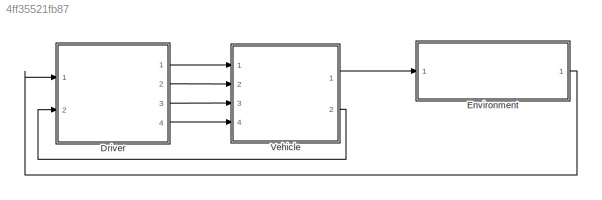
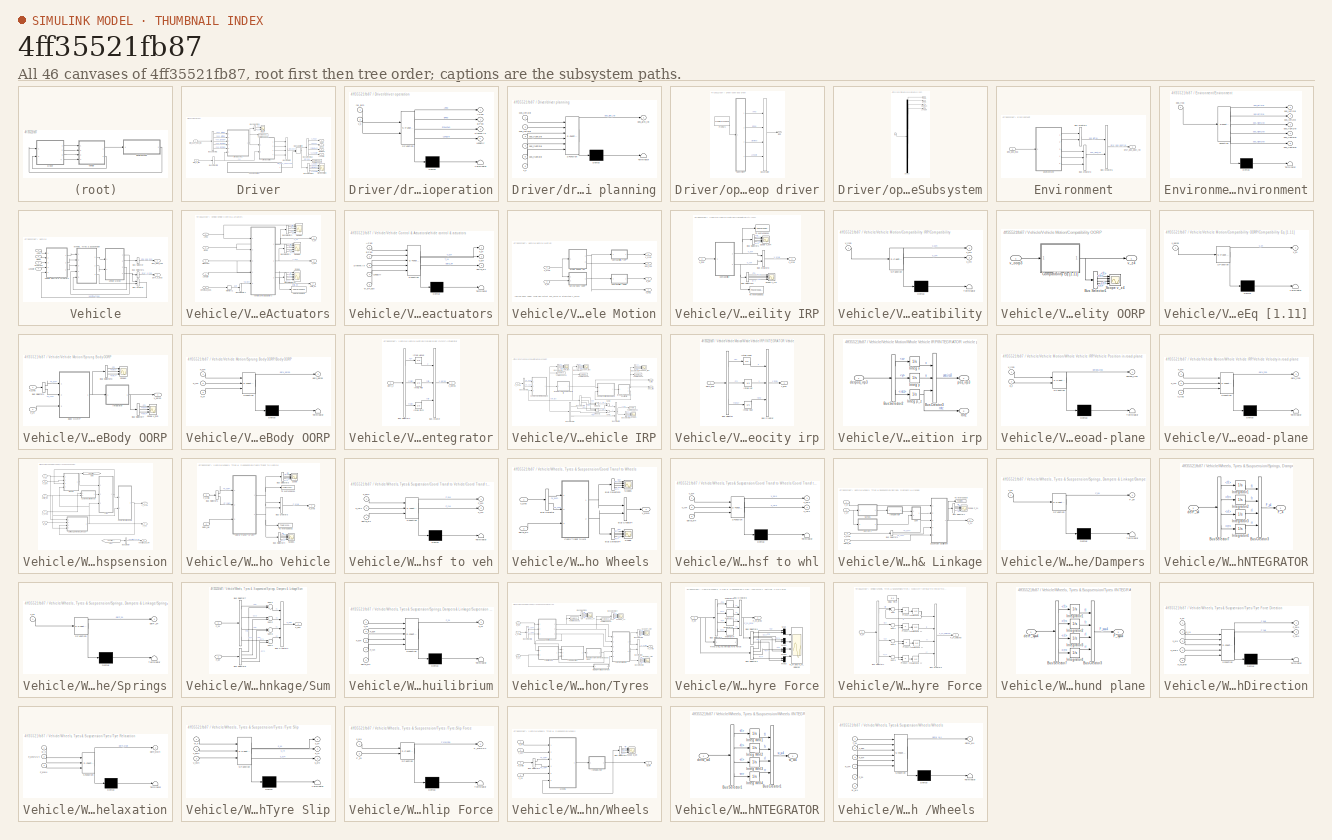
[diagram: thumbnail index - all 46 canvases of the model, root first then tree order]
MODEL slx_4ff35521fb87
KIND model
CONFIG StopFcn = PlotPathAndForces(pos_irp3,delta_w4,F_z4,v_xv4,v_yv4,F_xv4,F_yv4, Par, -2);\nTimePlots
BLOCK [SubSystem] Driver
  FunctionWithSeparateData = off
  MaskHideContents = off
  MinAlgLoopOccurrences = off
  Opaque = off
  Ports = [2, 4]
  PropExecContextOutsideSubsystem = off
  RTWSystemCode = Auto
  RequestExecContextInheritance = off
BLOCK [Outport] Driver/APed
  IconDisplay = Port number
BLOCK [Outport] Driver/BPed
  IconDisplay = Port number
  Port = 2
BLOCK [BusCreator] Driver/Bus Creator2
  DisplayOption = bar
  Ports = [4, 1]
BLOCK [BusSelector] Driver/Bus Selector1
  OutputSignals = pos_left_rel.pos_left1rel,pos_left_rel.pos_left2rel,pos_right_rel.pos_right1rel,pos_right_rel.pos_right2rel,pos_right_rel.pos_right3rel
  Ports = [1, 5]
BLOCK [BusSelector] Driver/Bus Selector10
  OutputSignals = APed,BPed,SteWhlAn,LongDir
  Ports = [1, 4]
BLOCK [BusSelector] Driver/Bus Selector11
  OutputSignals = x,y
  Ports = [1, 2]
BLOCK [BusSelector] Driver/Bus Selector12
  OutputSignals = APed,BPed,SteWhlAn,LongDir
  Ports = [1, 4]
BLOCK [BusSelector] Driver/Bus Selector2
  OutputSignals = x
  Ports = [1, 1]
BLOCK [Scope] Driver/Driver operation
  DataFormat = StructureWithTime
  Floating = off
  LimitDataPoints = off
  NumInputPorts = 4
  Ports = [4]
  SampleTime = 0
  SaveName = ScopeData1
  ShowLegends = off
  YMax = 0.7~1~5~1.05
  YMin = -5.55112e-17~-1~-12.5~0.95
BLOCK [Inport] Driver/Drvr_pos_obst_rel
  IconDisplay = Port number
BLOCK [Inport] Driver/Drvr_v_irp3
  IconDisplay = Port number
  Port = 2
BLOCK [Outport] Driver/LongDir
  IconDisplay = Port number
  Port = 4
BLOCK [ManualSwitch] Driver/Manual Switch
BLOCK [Outport] Driver/SteWhlAn
  IconDisplay = Port number
  Port = 3
BLOCK [ToWorkspace] Driver/To Workspace
  MaxDataPoints = inf
  Ports = [1]
  SampleTime = -1
  SaveFormat = Timeseries
  VariableName = drvr_op4
BLOCK [ToWorkspace] Driver/To Workspace1
  MaxDataPoints = inf
  Ports = [1]
  SampleTime = -1
  SaveFormat = Timeseries
  VariableName = aim_rel
BLOCK [Scope] Driver/aim_rel
  DataFormat = StructureWithTime
  Floating = off
  LimitDataPoints = off
  NumInputPorts = 2
  Ports = [2]
  SampleTime = 0
  SaveName = ScopeData5
  ShowLegends = off
  YMax = 47.65~1.785
  YMin = 47.275~1.7525
BLOCK [SubSystem] Driver/driver operation
  ErrorFcn = Stateflow.Translate.translate
  FunctionWithSeparateData = off
  MaskHideContents = off
  MinAlgLoopOccurrences = on
  Opaque = off
  PermitHierarchicalResolution = ExplicitOnly
  Ports = [2, 4]
  PropExecContextOutsideSubsystem = off
  RTWSystemCode = Auto
  RequestExecContextInheritance = off
  SFBlockType = MATLAB Function
  TreatAsAtomicUnit = on
BLOCK [Demux] Driver/driver operation/ Demux 
  Outputs = 1
  Ports = [1, 1]
BLOCK [S-Function] Driver/driver operation/ SFunction 
  EnableBusSupport = on
  FunctionName = sf_sfun
  Parameters = Par
  PortCounts = [2 5]
  Ports = [2, 5]
  Tag = Stateflow S-Function AllPurposeModel_TyreRelaxation 1
BLOCK [Terminator] Driver/driver operation/ Terminator 
BLOCK [Outport] Driver/driver operation/APed
  IconDisplay = Port number
BLOCK [Outport] Driver/driver operation/BPed
  IconDisplay = Port number
  Port = 2
BLOCK [Outport] Driver/driver operation/LongDir
  IconDisplay = Port number
  Port = 4
BLOCK [Outport] Driver/driver operation/SteWhlAn
  IconDisplay = Port number
  Port = 3
BLOCK [Inport] Driver/driver operation/rel_aim
  IconDisplay = Port number
BLOCK [Inport] Driver/driver operation/v_x
  IconDisplay = Port number
  Port = 2
BLOCK [SubSystem] Driver/driver planning
  ErrorFcn = Stateflow.Translate.translate
  FunctionWithSeparateData = off
  MaskHideContents = off
  MinAlgLoopOccurrences = on
  Opaque = off
  PermitHierarchicalResolution = ExplicitOnly
  Ports = [6, 1]
  PropExecContextOutsideSubsystem = off
  RTWSystemCode = Auto
  RequestExecContextInheritance = off
  SFBlockType = MATLAB Function
  TreatAsAtomicUnit = on
BLOCK [Demux] Driver/driver planning/ Demux 
  Outputs = 1
  Ports = [1, 1]
BLOCK [S-Function] Driver/driver planning/ SFunction 
  EnableBusSupport = on
  FunctionName = sf_sfun
  Parameters = Par
  PortCounts = [6 2]
  Ports = [6, 2]
  Tag = Stateflow S-Function AllPurposeModel_TyreRelaxation 2
BLOCK [Terminator] Driver/driver planning/ Terminator 
BLOCK [Outport] Driver/driver planning/pos_aim_rel
  IconDisplay = Port number
BLOCK [Inport] Driver/driver planning/pos_left1rel
  IconDisplay = Port number
BLOCK [Inport] Driver/driver planning/pos_left2rel
  IconDisplay = Port number
  Port = 2
BLOCK [Inport] Driver/driver planning/pos_right1rel
  IconDisplay = Port number
  Port = 3
BLOCK [Inport] Driver/driver planning/pos_right2rel
  IconDisplay = Port number
  Port = 4
BLOCK [Inport] Driver/driver planning/pos_right3rel
  IconDisplay = Port number
  Port = 5
BLOCK [Inport] Driver/driver planning/v_x
  IconDisplay = Port number
  Port = 6
BLOCK [SubSystem] Driver/open loop driver
  ClipboardFcn = sigbuilder_block('clipboard');
  CloseFcn = sigbuilder_block('close');
  ContinueFcn = sigbuilder_block('continue');
  CopyFcn = sigbuilder_block('copy');
  DeleteFcn = sigbuilder_block('delete');
  FunctionWithSeparateData = off
  LoadFcn = sigbuilder_block('load');
  MaskHideContents = on
  MinAlgLoopOccurrences = off
  ModelCloseFcn = sigbuilder_block('modelClose');
  NameChangeFcn = sigbuilder_block('namechange');
  Opaque = off
  OpenFcn = sigbuilder_block('open',[80.25 63.75 1019.25 535.5 ]);
  PauseFcn = sigbuilder_block('pause');
  Ports = [0, 1]
  PreSaveFcn = sigbuilder_block('preSave');
  PropExecContextOutsideSubsystem = off
  RTWSystemCode = Auto
  RequestExecContextInheritance = off
  StartFcn = sigbuilder_block('start');
  StopFcn = sigbuilder_block('stop');
  Tag = STV Subsys
BLOCK [Outport] Driver/open loop driver/Bus
  IconDisplay = Port number
BLOCK [BusCreator] Driver/open loop driver/Bus Creator
  Ports = [4, 1]
  Tag = Bus Creator
BLOCK [FromWorkspace] Driver/open loop driver/FromWs
  SampleTime = 0
  Tag = STV FromWs
  VariableName = tuvar
  ZeroCross = on
BLOCK [SubSystem] Driver/open loop driver/Subsystem
  FunctionWithSeparateData = off
  MaskHideContents = off
  MinAlgLoopOccurrences = off
  Opaque = off
  Ports = [1, 4]
  PropExecContextOutsideSubsystem = off
  RTWSystemCode = Auto
  RequestExecContextInheritance = off
BLOCK [Outport] Driver/open loop driver/Subsystem/APed
  IconDisplay = Port number
  Tag = STV Outport
BLOCK [Outport] Driver/open loop driver/Subsystem/BPed
  IconDisplay = Port number
  Port = 2
  Tag = STV Outport
BLOCK [Demux] Driver/open loop driver/Subsystem/Demux
  Ports = [1, 4]
  Tag = STV Demux
BLOCK [Inport] Driver/open loop driver/Subsystem/In1
  IconDisplay = Port number
BLOCK [Outport] Driver/open loop driver/Subsystem/LongDir
  IconDisplay = Port number
  Port = 4
  Tag = STV Outport
BLOCK [Outport] Driver/open loop driver/Subsystem/SteWhlAn
  IconDisplay = Port number
  Port = 3
  Tag = STV Outport
BLOCK [SubSystem] Environment
  FunctionWithSeparateData = off
  MaskHideContents = off
  MinAlgLoopOccurrences = off
  Opaque = off
  Ports = [1, 1]
  PropExecContextOutsideSubsystem = off
  RTWSystemCode = Auto
  RequestExecContextInheritance = off
BLOCK [BusCreator] Environment/Bus Creator2
  DisplayOption = bar
  Inputs = 2
  Ports = [2, 1]
BLOCK [BusCreator] Environment/Bus Creator3
  DisplayOption = bar
  Inputs = 3
  Ports = [3, 1]
BLOCK [BusCreator] Environment/Bus Creator6
  DisplayOption = bar
  Inputs = 2
  Ports = [2, 1]
BLOCK [Outport] Environment/Drvr_pos_obst_rel
  IconDisplay = Port number
BLOCK [Inport] Environment/Env_pos_irp3
  IconDisplay = Port number
BLOCK [SubSystem] Environment/Environment
  ErrorFcn = Stateflow.Translate.translate
  FunctionWithSeparateData = off
  MaskHideContents = off
  MinAlgLoopOccurrences = off
  Opaque = off
  PermitHierarchicalResolution = ExplicitOnly
  Ports = [1, 5]
  PropExecContextOutsideSubsystem = off
  RTWSystemCode = Auto
  RequestExecContextInheritance = off
  SFBlockType = MATLAB Function
  TreatAsAtomicUnit = on
BLOCK [Demux] Environment/Environment/ Demux 
  Outputs = 1
  Ports = [1, 1]
BLOCK [S-Function] Environment/Environment/ SFunction 
  EnableBusSupport = on
  FunctionName = sf_sfun
  Parameters = Par
  PortCounts = [1 6]
  Ports = [1, 6]
  Tag = Stateflow S-Function AllPurposeModel_TyreRelaxation 27
BLOCK [Terminator] Environment/Environment/ Terminator 
BLOCK [Inport] Environment/Environment/pos_irp3
  IconDisplay = Port number
BLOCK [Outport] Environment/Environment/pos_left1rel
  IconDisplay = Port number
BLOCK [Outport] Environment/Environment/pos_left2rel
  IconDisplay = Port number
  Port = 2
BLOCK [Outport] Environment/Environment/pos_right1rel
  IconDisplay = Port number
  Port = 3
BLOCK [Outport] Environment/Environment/pos_right2rel
  IconDisplay = Port number
  Port = 4
BLOCK [Outport] Environment/Environment/pos_right3rel
  IconDisplay = Port number
  Port = 5
BLOCK [SubSystem] Vehicle
  FunctionWithSeparateData = off
  MaskHideContents = off
  MinAlgLoopOccurrences = off
  Opaque = off
  Ports = [4, 2]
  PropExecContextOutsideSubsystem = off
  RTWSystemCode = Auto
  RequestExecContextInheritance = off
BLOCK [Inport] Vehicle/APed
  IconDisplay = Port number
BLOCK [Inport] Vehicle/BPed
  IconDisplay = Port number
  Port = 2
BLOCK [BusCreator] Vehicle/Bus Creator
  DisplayOption = bar
  Inputs = 2
  Ports = [2, 1]
BLOCK [BusSelector] Vehicle/Bus Selector
  OutputAsBus = on
  OutputSignals = x,y,rotz
  Ports = [1, 1]
BLOCK [BusSelector] Vehicle/Bus Selector1
  OutputAsBus = on
  OutputSignals = x,y,rotz
  Ports = [1, 1]
BLOCK [Outport] Vehicle/Drvr_v_irp3
  IconDisplay = Port number
  Port = 2
BLOCK [Outport] Vehicle/Env_pos_irp3
  IconDisplay = Port number
BLOCK [Inport] Vehicle/LongDir
  IconDisplay = Port number
  Port = 4
BLOCK [Inport] Vehicle/SteWhlAn
  IconDisplay = Port number
  Port = 3
BLOCK [SubSystem] Vehicle/Vehicle Control & Actuators
  FunctionWithSeparateData = off
  MaskHideContents = off
  MinAlgLoopOccurrences = off
  Opaque = off
  Ports = [5, 3]
  PropExecContextOutsideSubsystem = off
  RTWSystemCode = Auto
  RequestExecContextInheritance = off
BLOCK [Inport] Vehicle/Vehicle Control & Actuators/APed
  IconDisplay = Port number
BLOCK [Inport] Vehicle/Vehicle Control & Actuators/BPed
  IconDisplay = Port number
  Port = 2
BLOCK [BusSelector] Vehicle/Vehicle Control & Actuators/Bus Selector1
  OutputSignals = fl,fr,rl,rr
  Ports = [1, 4]
BLOCK [BusSelector] Vehicle/Vehicle Control & Actuators/Bus Selector11
  OutputSignals = fl,fr,rl,rr
  Ports = [1, 4]
BLOCK [BusSelector] Vehicle/Vehicle Control & Actuators/Bus Selector2
  OutputSignals = fl,fr,rl,rr
  Ports = [1, 4]
BLOCK [BusSelector] Vehicle/Vehicle Control & Actuators/Bus Selector4
  OutputSignals = VehCtrlAct_w_w4.w_w4
  Ports = [1, 1]
BLOCK [Inport] Vehicle/Vehicle Control & Actuators/LongDir
  IconDisplay = Port number
  Port = 4
BLOCK [Memory] Vehicle/Vehicle Control & Actuators/Memory1
  X0 = Par.Init.v_x
BLOCK [Scope] Vehicle/Vehicle Control & Actuators/Scope
  DataFormat = StructureWithTime
  Floating = off
  LimitDataPoints = off
  NumInputPorts = 5
  Ports = [5]
  SampleTime = 0
  SaveName = ScopeData2
  ShowLegends = off
  YMax = 3937.5~5~5~5~5
  YMin = 3562.5~-5~-5~-5~-5
BLOCK [Scope] Vehicle/Vehicle Control & Actuators/Scope1
  DataFormat = StructureWithTime
  Floating = off
  LimitDataPoints = off
  NumInputPorts = 5
  Ports = [5]
  SampleTime = 0
  SaveName = ScopeData10
  ShowLegends = off
  YMax = 1~700~700~1~1
  YMin = 5.55112e-17~0~0~-1~-1
BLOCK [Scope] Vehicle/Vehicle Control & Actuators/Scope2
  DataFormat = StructureWithTime
  Floating = off
  LimitDataPoints = off
  NumInputPorts = 5
  Ports = [5]
  SampleTime = 0
  SaveName = ScopeData13
  ShowLegends = off
  YMax = 3937.5~5~5~5~5
  YMin = 3562.5~-5~-5~-5~-5
BLOCK [Inport] Vehicle/Vehicle Control & Actuators/SteWhlAn
  IconDisplay = Port number
  Port = 3
BLOCK [Outport] Vehicle/Vehicle Control & Actuators/T_s4
  IconDisplay = Port number
BLOCK [Outport] Vehicle/Vehicle Control & Actuators/T_us4
  IconDisplay = Port number
  Port = 2
BLOCK [ToWorkspace] Vehicle/Vehicle Control & Actuators/To Workspace
  MaxDataPoints = inf
  Ports = [1]
  SampleTime = -1
  SaveFormat = Timeseries
  VariableName = delta_w4
BLOCK [Inport] Vehicle/Vehicle Control & Actuators/VehCtrlAct_bus
  IconDisplay = Port number
  Port = 5
BLOCK [Outport] Vehicle/Vehicle Control & Actuators/delta_w4
  IconDisplay = Port number
  Port = 3
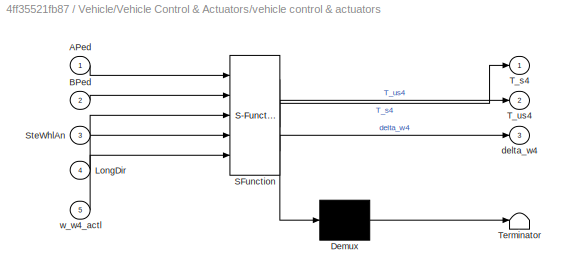
BLOCK [SubSystem] Vehicle/Vehicle Control & Actuators/vehicle control & actuators
  ErrorFcn = Stateflow.Translate.translate
  FunctionWithSeparateData = off
  MaskHideContents = off
  MinAlgLoopOccurrences = on
  Opaque = off
  PermitHierarchicalResolution = ExplicitOnly
  Ports = [5, 3]
  PropExecContextOutsideSubsystem = off
  RTWSystemCode = Auto
  RequestExecContextInheritance = off
  SFBlockType = MATLAB Function
  TreatAsAtomicUnit = on
BLOCK [Demux] Vehicle/Vehicle Control & Actuators/vehicle control & actuators/ Demux 
  Outputs = 1
  Ports = [1, 1]
BLOCK [S-Function] Vehicle/Vehicle Control & Actuators/vehicle control & actuators/ SFunction 
  EnableBusSupport = on
  FunctionName = sf_sfun
  Parameters = Par
  PortCounts = [5 4]
  Ports = [5, 4]
  Tag = Stateflow S-Function AllPurposeModel_TyreRelaxation 28
BLOCK [Terminator] Vehicle/Vehicle Control & Actuators/vehicle control & actuators/ Terminator 
BLOCK [Inport] Vehicle/Vehicle Control & Actuators/vehicle control & actuators/APed
  IconDisplay = Port number
BLOCK [Inport] Vehicle/Vehicle Control & Actuators/vehicle control & actuators/BPed
  IconDisplay = Port number
  Port = 2
BLOCK [Inport] Vehicle/Vehicle Control & Actuators/vehicle control & actuators/LongDir
  IconDisplay = Port number
  Port = 4
BLOCK [Inport] Vehicle/Vehicle Control & Actuators/vehicle control & actuators/SteWhlAn
  IconDisplay = Port number
  Port = 3
BLOCK [Outport] Vehicle/Vehicle Control & Actuators/vehicle control & actuators/T_s4
  IconDisplay = Port number
BLOCK [Outport] Vehicle/Vehicle Control & Actuators/vehicle control & actuators/T_us4
  IconDisplay = Port number
  Port = 2
BLOCK [Outport] Vehicle/Vehicle Control & Actuators/vehicle control & actuators/delta_w4
  IconDisplay = Port number
  Port = 3
BLOCK [Inport] Vehicle/Vehicle Control & Actuators/vehicle control & actuators/w_w4_actl
  IconDisplay = Port number
  Port = 5
BLOCK [SubSystem] Vehicle/Vehicle Motion
  FunctionWithSeparateData = off
  MaskHideContents = off
  MinAlgLoopOccurrences = off
  Opaque = off
  Ports = [2, 4]
  PropExecContextOutsideSubsystem = off
  RTWSystemCode = Auto
  RequestExecContextInheritance = off
BLOCK [SubSystem] Vehicle/Vehicle Motion/Compatibility IRP
  FunctionWithSeparateData = off
  MaskHideContents = off
  MinAlgLoopOccurrences = off
  Opaque = off
  Ports = [1, 1]
  PropExecContextOutsideSubsystem = off
  RTWSystemCode = Auto
  RequestExecContextInheritance = off
BLOCK [BusCreator] Vehicle/Vehicle Motion/Compatibility IRP/Bus Creator3
  DisplayOption = bar
  Inputs = 2
  Ports = [2, 1]
BLOCK [BusSelector] Vehicle/Vehicle Motion/Compatibility IRP/Bus Selector1
  OutputSignals = fl,fr,rl,rr
  Ports = [1, 4]
BLOCK [BusSelector] Vehicle/Vehicle Motion/Compatibility IRP/Bus Selector5
  OutputSignals = fl,fr,rl,rr
  Ports = [1, 4]
BLOCK [SubSystem] Vehicle/Vehicle Motion/Compatibility IRP/Compatibility
  ErrorFcn = Stateflow.Translate.translate
  FunctionWithSeparateData = off
  MaskHideContents = off
  MinAlgLoopOccurrences = off
  Opaque = off
  PermitHierarchicalResolution = ExplicitOnly
  Ports = [1, 2]
  PropExecContextOutsideSubsystem = off
  RTWSystemCode = Auto
  RequestExecContextInheritance = off
  SFBlockType = MATLAB Function
  TreatAsAtomicUnit = on
BLOCK [Demux] Vehicle/Vehicle Motion/Compatibility IRP/Compatibility/ Demux 
  Outputs = 1
  Ports = [1, 1]
BLOCK [S-Function] Vehicle/Vehicle Motion/Compatibility IRP/Compatibility/ SFunction 
  EnableBusSupport = on
  FunctionName = sf_sfun
  Parameters = Par
  PortCounts = [1 3]
  Ports = [1, 3]
  Tag = Stateflow S-Function AllPurposeModel_TyreRelaxation 12
BLOCK [Terminator] Vehicle/Vehicle Motion/Compatibility IRP/Compatibility/ Terminator 
BLOCK [Inport] Vehicle/Vehicle Motion/Compatibility IRP/Compatibility/v_irp3
  IconDisplay = Port number
BLOCK [Outport] Vehicle/Vehicle Motion/Compatibility IRP/Compatibility/v_xv4
  IconDisplay = Port number
BLOCK [Outport] Vehicle/Vehicle Motion/Compatibility IRP/Compatibility/v_yv4
  IconDisplay = Port number
  Port = 2
BLOCK [Scope] Vehicle/Vehicle Motion/Compatibility IRP/Scope v_xv4
  DataFormat = StructureWithTime
  Floating = off
  LimitDataPoints = off
  NumInputPorts = 4
  Ports = [4]
  SampleTime = 0
  SaveName = ScopeData24
  ShowLegends = off
  YMax = 80000~80000~70~70
  YMin = 0~0~63.3334~63.3334
BLOCK [Scope] Vehicle/Vehicle Motion/Compatibility IRP/Scope v_yv4
  DataFormat = StructureWithTime
  Floating = off
  LimitDataPoints = off
  NumInputPorts = 4
  Ports = [4]
  SampleTime = 0
  SaveName = ScopeData23
  ShowLegends = off
  YMax = 80000~80000~70~70
  YMin = 0~0~63.3334~63.3334
BLOCK [ToWorkspace] Vehicle/Vehicle Motion/Compatibility IRP/To Workspace1
  MaxDataPoints = inf
  Ports = [1]
  SampleTime = -1
  SaveFormat = Timeseries
  VariableName = v_xv4
BLOCK [ToWorkspace] Vehicle/Vehicle Motion/Compatibility IRP/To Workspace2
  MaxDataPoints = inf
  Ports = [1]
  SampleTime = -1
  SaveFormat = Timeseries
  VariableName = v_yv4
BLOCK [Inport] Vehicle/Vehicle Motion/Compatibility IRP/v_irp3
  IconDisplay = Port number
BLOCK [Outport] Vehicle/Vehicle Motion/Compatibility IRP/v_xyv8
  IconDisplay = Port number
BLOCK [SubSystem] Vehicle/Vehicle Motion/Compatibility OORP
  FunctionWithSeparateData = off
  MaskHideContents = off
  MinAlgLoopOccurrences = off
  Opaque = off
  Ports = [1, 1]
  PropExecContextOutsideSubsystem = off
  RTWSystemCode = Auto
  RequestExecContextInheritance = off
BLOCK [BusSelector] Vehicle/Vehicle Motion/Compatibility OORP/Bus Selector1
  OutputSignals = fl,fr,rl,rr
  Ports = [1, 4]
BLOCK [SubSystem] Vehicle/Vehicle Motion/Compatibility OORP/Compatibility Eq [1.11]
  ErrorFcn = Stateflow.Translate.translate
  FunctionWithSeparateData = off
  MaskHideContents = off
  MinAlgLoopOccurrences = off
  Opaque = off
  PermitHierarchicalResolution = ExplicitOnly
  Ports = [1, 1]
  PropExecContextOutsideSubsystem = off
  RTWSystemCode = Auto
  RequestExecContextInheritance = off
  SFBlockType = MATLAB Function
  TreatAsAtomicUnit = on
BLOCK [Demux] Vehicle/Vehicle Motion/Compatibility OORP/Compatibility Eq [1.11]/ Demux 
  Outputs = 1
  Ports = [1, 1]
BLOCK [S-Function] Vehicle/Vehicle Motion/Compatibility OORP/Compatibility Eq [1.11]/ SFunction 
  EnableBusSupport = on
  FunctionName = sf_sfun
  Parameters = Par
  PortCounts = [1 2]
  Ports = [1, 2]
  Tag = Stateflow S-Function AllPurposeModel_TyreRelaxation 13
BLOCK [Terminator] Vehicle/Vehicle Motion/Compatibility OORP/Compatibility Eq [1.11]/ Terminator 
BLOCK [Inport] Vehicle/Vehicle Motion/Compatibility OORP/Compatibility Eq [1.11]/v_oorp3
  IconDisplay = Port number
BLOCK [Outport] Vehicle/Vehicle Motion/Compatibility OORP/Compatibility Eq [1.11]/v_z4
  IconDisplay = Port number
BLOCK [Scope] Vehicle/Vehicle Motion/Compatibility OORP/Scope v_z4
  DataFormat = StructureWithTime
  Floating = off
  LimitDataPoints = off
  NumInputPorts = 4
  Ports = [4]
  SampleTime = 0
  SaveName = ScopeData25
  ShowLegends = off
  YMax = 0.03~0.125~0.03~0.125
  YMin = -0.1~-0.025~-0.1~-0.025
BLOCK [Inport] Vehicle/Vehicle Motion/Compatibility OORP/v_oorp3
  IconDisplay = Port number
BLOCK [Outport] Vehicle/Vehicle Motion/Compatibility OORP/v_z4
  IconDisplay = Port number
BLOCK [Inport] Vehicle/Vehicle Motion/F_xyv8
  IconDisplay = Port number
BLOCK [Inport] Vehicle/Vehicle Motion/F_z4
  IconDisplay = Port number
  Port = 2
BLOCK [SubSystem] Vehicle/Vehicle Motion/Sprung Body OORP
  FunctionWithSeparateData = off
  MaskHideContents = off
  MinAlgLoopOccurrences = off
  Opaque = off
  Ports = [2, 1]
  PropExecContextOutsideSubsystem = off
  RTWSystemCode = Auto
  RequestExecContextInheritance = off
BLOCK [SubSystem] Vehicle/Vehicle Motion/Sprung Body OORP/Body OORP
  ErrorFcn = Stateflow.Translate.translate
  FunctionWithSeparateData = off
  MaskHideContents = off
  MinAlgLoopOccurrences = off
  Opaque = off
  PermitHierarchicalResolution = ExplicitOnly
  Ports = [3, 1]
  PropExecContextOutsideSubsystem = off
  RTWSystemCode = Auto
  RequestExecContextInheritance = off
  SFBlockType = MATLAB Function
  TreatAsAtomicUnit = on
BLOCK [Demux] Vehicle/Vehicle Motion/Sprung Body OORP/Body OORP/ Demux 
  Outputs = 1
  Ports = [1, 1]
BLOCK [S-Function] Vehicle/Vehicle Motion/Sprung Body OORP/Body OORP/ SFunction 
  EnableBusSupport = on
  FunctionName = sf_sfun
  Parameters = Par
  PortCounts = [3 2]
  Ports = [3, 2]
  Tag = Stateflow S-Function AllPurposeModel_TyreRelaxation 11
BLOCK [Terminator] Vehicle/Vehicle Motion/Sprung Body OORP/Body OORP/ Terminator 
BLOCK [Inport] Vehicle/Vehicle Motion/Sprung Body OORP/Body OORP/F_xv4
  IconDisplay = Port number
BLOCK [Inport] Vehicle/Vehicle Motion/Sprung Body OORP/Body OORP/F_yv4
  IconDisplay = Port number
  Port = 2
BLOCK [Inport] Vehicle/Vehicle Motion/Sprung Body OORP/Body OORP/F_z4
  IconDisplay = Port number
  Port = 3
BLOCK [Outport] Vehicle/Vehicle Motion/Sprung Body OORP/Body OORP/derv_oorp3
  IconDisplay = Port number
BLOCK [BusSelector] Vehicle/Vehicle Motion/Sprung Body OORP/Bus Selector1
  OutputSignals = F_xv4,F_yv4
  Ports = [1, 2]
BLOCK [BusSelector] Vehicle/Vehicle Motion/Sprung Body OORP/Bus Selector3
  OutputSignals = z,rotx,roty
  Ports = [1, 3]
BLOCK [BusSelector] Vehicle/Vehicle Motion/Sprung Body OORP/Bus Selector7
  OutputSignals = z,rotx,roty
  Ports = [1, 3]
BLOCK [Inport] Vehicle/Vehicle Motion/Sprung Body OORP/F_xyv8
  IconDisplay = Port number
BLOCK [Inport] Vehicle/Vehicle Motion/Sprung Body OORP/F_z4
  IconDisplay = Port number
  Port = 2
BLOCK [SubSystem] Vehicle/Vehicle Motion/Sprung Body OORP/Integrator
  FunctionWithSeparateData = off
  MaskHideContents = off
  MinAlgLoopOccurrences = off
  Opaque = off
  Ports = [1, 1]
  PropExecContextOutsideSubsystem = off
  RTWSystemCode = Auto
  RequestExecContextInheritance = off
BLOCK [BusCreator] Vehicle/Vehicle Motion/Sprung Body OORP/Integrator/Bus Creator
  DisplayOption = bar
  Inputs = 3
  OutDataTypeStr = Bus: oorp_vec3
  Ports = [3, 1]
BLOCK [BusSelector] Vehicle/Vehicle Motion/Sprung Body OORP/Integrator/Bus Selector4
  OutputSignals = z,rotx,roty
  Ports = [1, 3]
BLOCK [Integrator] Vehicle/Vehicle Motion/Sprung Body OORP/Integrator/Integ Heave
  Ports = [1, 1]
BLOCK [Integrator] Vehicle/Vehicle Motion/Sprung Body OORP/Integrator/Integ Pitch
  Ports = [1, 1]
BLOCK [Integrator] Vehicle/Vehicle Motion/Sprung Body OORP/Integrator/Integ Roll
  Ports = [1, 1]
BLOCK [Inport] Vehicle/Vehicle Motion/Sprung Body OORP/Integrator/derv_z
  IconDisplay = Port number
BLOCK [Outport] Vehicle/Vehicle Motion/Sprung Body OORP/Integrator/v_oorp3
  IconDisplay = Port number
BLOCK [Scope] Vehicle/Vehicle Motion/Sprung Body OORP/Scope v_irp3
  DataFormat = StructureWithTime
  Floating = off
  LimitDataPoints = off
  NumInputPorts = 3
  Ports = [3]
  SampleTime = 0
  SaveName = ScopeData9
  ShowLegends = off
  YMax = 80000~80000~70
  YMin = 0~0~63.3334
BLOCK [Scope] Vehicle/Vehicle Motion/Sprung Body OORP/Scope2
  DataFormat = StructureWithTime
  Floating = off
  LimitDataPoints = off
  NumInputPorts = 3
  Ports = [3]
  SampleTime = 0
  SaveName = ScopeData14
  ShowLegends = off
  YMax = 80000~80000~70
  YMin = 0~0~63.3334
BLOCK [Outport] Vehicle/Vehicle Motion/Sprung Body OORP/v_oorp3
  IconDisplay = Port number
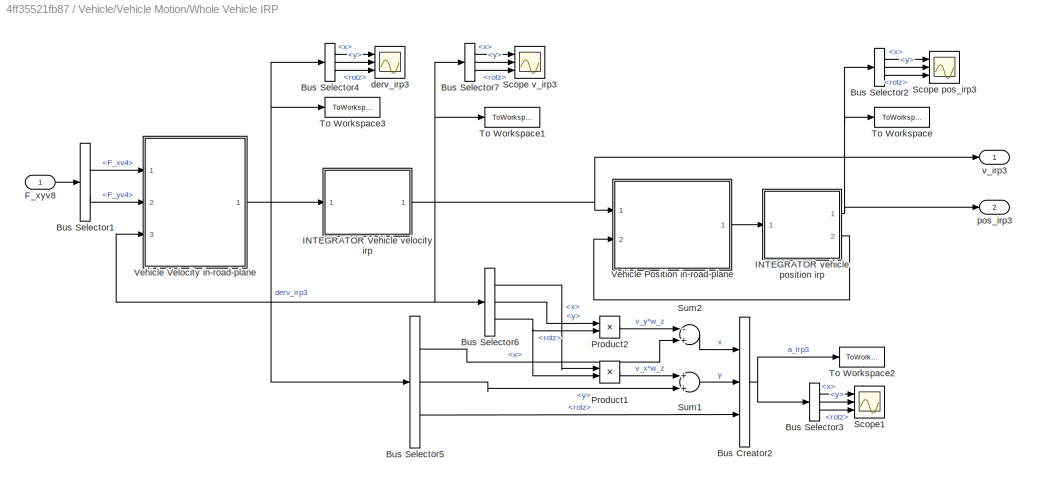
BLOCK [SubSystem] Vehicle/Vehicle Motion/Whole Vehicle IRP
  FunctionWithSeparateData = off
  MaskHideContents = off
  MinAlgLoopOccurrences = off
  Opaque = off
  Ports = [1, 2]
  PropExecContextOutsideSubsystem = off
  RTWSystemCode = Auto
  RequestExecContextInheritance = off
BLOCK [BusCreator] Vehicle/Vehicle Motion/Whole Vehicle IRP/Bus Creator2
  DisplayOption = bar
  Inputs = 3
  OutDataTypeStr = Bus: irp_vec3
  Ports = [3, 1]
BLOCK [BusSelector] Vehicle/Vehicle Motion/Whole Vehicle IRP/Bus Selector1
  OutputSignals = F_xv4,F_yv4
  Ports = [1, 2]
BLOCK [BusSelector] Vehicle/Vehicle Motion/Whole Vehicle IRP/Bus Selector2
  OutputSignals = x,y,rotz
  Ports = [1, 3]
BLOCK [BusSelector] Vehicle/Vehicle Motion/Whole Vehicle IRP/Bus Selector3
  OutputSignals = x,y,rotz
  Ports = [1, 3]
BLOCK [BusSelector] Vehicle/Vehicle Motion/Whole Vehicle IRP/Bus Selector4
  OutputSignals = x,y,rotz
  Ports = [1, 3]
BLOCK [BusSelector] Vehicle/Vehicle Motion/Whole Vehicle IRP/Bus Selector5
  OutputSignals = x,y,rotz
  Ports = [1, 3]
BLOCK [BusSelector] Vehicle/Vehicle Motion/Whole Vehicle IRP/Bus Selector6
  OutputSignals = x,y,rotz
  Ports = [1, 3]
BLOCK [BusSelector] Vehicle/Vehicle Motion/Whole Vehicle IRP/Bus Selector7
  OutputSignals = x,y,rotz
  Ports = [1, 3]
BLOCK [Inport] Vehicle/Vehicle Motion/Whole Vehicle IRP/F_xyv8
  IconDisplay = Port number
BLOCK [SubSystem] Vehicle/Vehicle Motion/Whole Vehicle IRP/INTEGRATOR Vehicle velocity irp
  FunctionWithSeparateData = off
  MaskHideContents = off
  MinAlgLoopOccurrences = off
  Opaque = off
  Ports = [1, 1]
  PropExecContextOutsideSubsystem = off
  RTWSystemCode = Auto
  RequestExecContextInheritance = off
BLOCK [BusCreator] Vehicle/Vehicle Motion/Whole Vehicle IRP/INTEGRATOR Vehicle velocity irp/Bus Creator
  DisplayOption = bar
  Inputs = 3
  OutDataTypeStr = Bus: irp_vec3
  Ports = [3, 1]
BLOCK [BusSelector] Vehicle/Vehicle Motion/Whole Vehicle IRP/INTEGRATOR Vehicle velocity irp/Bus Selector
  OutputSignals = x,y,rotz
  Ports = [1, 3]
BLOCK [Integrator] Vehicle/Vehicle Motion/Whole Vehicle IRP/INTEGRATOR Vehicle velocity irp/Integ Lat
  Ports = [1, 1]
BLOCK [Integrator] Vehicle/Vehicle Motion/Whole Vehicle IRP/INTEGRATOR Vehicle velocity irp/Integ Long
  InitialCondition = Par.Init.v_x
  Ports = [1, 1]
BLOCK [Integrator] Vehicle/Vehicle Motion/Whole Vehicle IRP/INTEGRATOR Vehicle velocity irp/Integ Yaw
  Ports = [1, 1]
BLOCK [Inport] Vehicle/Vehicle Motion/Whole Vehicle IRP/INTEGRATOR Vehicle velocity irp/derv_irp3
  IconDisplay = Port number
BLOCK [Outport] Vehicle/Vehicle Motion/Whole Vehicle IRP/INTEGRATOR Vehicle velocity irp/v_irp3
  IconDisplay = Port number
BLOCK [SubSystem] Vehicle/Vehicle Motion/Whole Vehicle IRP/INTEGRATOR vehicle position irp
  FunctionWithSeparateData = off
  MaskHideContents = off
  MinAlgLoopOccurrences = off
  Opaque = off
  Ports = [1, 2]
  PropExecContextOutsideSubsystem = off
  RTWSystemCode = Auto
  RequestExecContextInheritance = off
BLOCK [BusCreator] Vehicle/Vehicle Motion/Whole Vehicle IRP/INTEGRATOR vehicle position irp/Bus Creator3
  DisplayOption = bar
  Inputs = 3
  OutDataTypeStr = Bus: irp_vec3
  Ports = [3, 1]
BLOCK [BusSelector] Vehicle/Vehicle Motion/Whole Vehicle IRP/INTEGRATOR vehicle position irp/Bus Selector2
  OutputSignals = x,y,rotz
  Ports = [1, 3]
BLOCK [Integrator] Vehicle/Vehicle Motion/Whole Vehicle IRP/INTEGRATOR vehicle position irp/Integ p_z
  Ports = [1, 1]
BLOCK [Integrator] Vehicle/Vehicle Motion/Whole Vehicle IRP/INTEGRATOR vehicle position irp/Integ x
  Ports = [1, 1]
BLOCK [Integrator] Vehicle/Vehicle Motion/Whole Vehicle IRP/INTEGRATOR vehicle position irp/Integ y
  Ports = [1, 1]
BLOCK [Inport] Vehicle/Vehicle Motion/Whole Vehicle IRP/INTEGRATOR vehicle position irp/derpos_irp3
  IconDisplay = Port number
BLOCK [Outport] Vehicle/Vehicle Motion/Whole Vehicle IRP/INTEGRATOR vehicle position irp/pos_irp3
  IconDisplay = Port number
BLOCK [Outport] Vehicle/Vehicle Motion/Whole Vehicle IRP/INTEGRATOR vehicle position irp/rotz
  IconDisplay = Port number
  Port = 2
BLOCK [Product] Vehicle/Vehicle Motion/Whole Vehicle IRP/Product1
  InputSameDT = off
  OutDataTypeStr = Inherit: Inherit via internal rule
  Ports = [2, 1]
  RndMeth = Floor
  SaturateOnIntegerOverflow = off
BLOCK [Product] Vehicle/Vehicle Motion/Whole Vehicle IRP/Product2
  InputSameDT = off
  OutDataTypeStr = Inherit: Inherit via internal rule
  Ports = [2, 1]
  RndMeth = Floor
  SaturateOnIntegerOverflow = off
BLOCK [Scope] Vehicle/Vehicle Motion/Whole Vehicle IRP/Scope pos_irp3
  DataFormat = StructureWithTime
  Floating = off
  LimitDataPoints = off
  NumInputPorts = 3
  Ports = [3]
  SampleTime = 0
  SaveName = ScopeData6
  ShowLegends = off
  YMax = 11~1.5~20
  YMin = 3~-1~2.5
BLOCK [Scope] Vehicle/Vehicle Motion/Whole Vehicle IRP/Scope v_irp3
  DataFormat = StructureWithTime
  Floating = off
  LimitDataPoints = off
  NumInputPorts = 3
  Ports = [3]
  SampleTime = 0
  ShowLegends = off
  YMax = 55~0.25~0.175
  YMin = 0~-1.5~-0.025
BLOCK [Scope] Vehicle/Vehicle Motion/Whole Vehicle IRP/Scope1
  DataFormat = StructureWithTime
  Floating = off
  LimitDataPoints = off
  NumInputPorts = 3
  Ports = [3]
  SampleTime = 0
  SaveName = ScopeData21
  ShowLegends = off
  YMax = 0.25~9.25~0.08
  YMin = -0.5~5.5~-0.03
BLOCK [Sum] Vehicle/Vehicle Motion/Whole Vehicle IRP/Sum1
  InputSameDT = off
  OutDataTypeStr = Inherit: Inherit via internal rule
  Ports = [2, 1]
  SaturateOnIntegerOverflow = off
BLOCK [Sum] Vehicle/Vehicle Motion/Whole Vehicle IRP/Sum2
  InputSameDT = off
  Inputs = -+
  OutDataTypeStr = Inherit: Inherit via internal rule
  Ports = [2, 1]
  SaturateOnIntegerOverflow = off
BLOCK [ToWorkspace] Vehicle/Vehicle Motion/Whole Vehicle IRP/To Workspace
  MaxDataPoints = inf
  Ports = [1]
  SampleTime = -1
  SaveFormat = Timeseries
  VariableName = pos_irp3
BLOCK [ToWorkspace] Vehicle/Vehicle Motion/Whole Vehicle IRP/To Workspace1
  MaxDataPoints = inf
  Ports = [1]
  SampleTime = -1
  SaveFormat = Timeseries
  VariableName = v_irp3
BLOCK [ToWorkspace] Vehicle/Vehicle Motion/Whole Vehicle IRP/To Workspace2
  MaxDataPoints = inf
  Ports = [1]
  SampleTime = -1
  SaveFormat = Timeseries
  VariableName = a_irp3
BLOCK [ToWorkspace] Vehicle/Vehicle Motion/Whole Vehicle IRP/To Workspace3
  MaxDataPoints = inf
  Ports = [1]
  SampleTime = -1
  SaveFormat = Timeseries
  VariableName = derv_irp3
BLOCK [SubSystem] Vehicle/Vehicle Motion/Whole Vehicle IRP/Vehicle Position in-road-plane
  ErrorFcn = Stateflow.Translate.translate
  FunctionWithSeparateData = off
  MaskHideContents = off
  MinAlgLoopOccurrences = off
  Opaque = off
  PermitHierarchicalResolution = ExplicitOnly
  Ports = [2, 1]
  PropExecContextOutsideSubsystem = off
  RTWSystemCode = Auto
  RequestExecContextInheritance = off
  SFBlockType = MATLAB Function
  TreatAsAtomicUnit = on
BLOCK [Demux] Vehicle/Vehicle Motion/Whole Vehicle IRP/Vehicle Position in-road-plane/ Demux 
  Outputs = 1
  Ports = [1, 1]
BLOCK [S-Function] Vehicle/Vehicle Motion/Whole Vehicle IRP/Vehicle Position in-road-plane/ SFunction 
  EnableBusSupport = on
  FunctionName = sf_sfun
  PortCounts = [2 2]
  Ports = [2, 2]
  Tag = Stateflow S-Function AllPurposeModel_TyreRelaxation 8
BLOCK [Terminator] Vehicle/Vehicle Motion/Whole Vehicle IRP/Vehicle Position in-road-plane/ Terminator 
BLOCK [Outport] Vehicle/Vehicle Motion/Whole Vehicle IRP/Vehicle Position in-road-plane/derpos_irp3
  IconDisplay = Port number
BLOCK [Inport] Vehicle/Vehicle Motion/Whole Vehicle IRP/Vehicle Position in-road-plane/p_z
  IconDisplay = Port number
  Port = 2
BLOCK [Inport] Vehicle/Vehicle Motion/Whole Vehicle IRP/Vehicle Position in-road-plane/v_irp3
  IconDisplay = Port number
BLOCK [SubSystem] Vehicle/Vehicle Motion/Whole Vehicle IRP/Vehicle Velocity in-road-plane
  ErrorFcn = Stateflow.Translate.translate
  FunctionWithSeparateData = off
  MaskHideContents = off
  MinAlgLoopOccurrences = off
  Opaque = off
  PermitHierarchicalResolution = ExplicitOnly
  Ports = [3, 1]
  PropExecContextOutsideSubsystem = off
  RTWSystemCode = Auto
  RequestExecContextInheritance = off
  SFBlockType = MATLAB Function
  TreatAsAtomicUnit = on
BLOCK [Demux] Vehicle/Vehicle Motion/Whole Vehicle IRP/Vehicle Velocity in-road-plane/ Demux 
  Outputs = 1
  Ports = [1, 1]
BLOCK [S-Function] Vehicle/Vehicle Motion/Whole Vehicle IRP/Vehicle Velocity in-road-plane/ SFunction 
  EnableBusSupport = on
  FunctionName = sf_sfun
  Parameters = Par
  PortCounts = [3 2]
  Ports = [3, 2]
  Tag = Stateflow S-Function AllPurposeModel_TyreRelaxation 7
BLOCK [Terminator] Vehicle/Vehicle Motion/Whole Vehicle IRP/Vehicle Velocity in-road-plane/ Terminator 
BLOCK [Inport] Vehicle/Vehicle Motion/Whole Vehicle IRP/Vehicle Velocity in-road-plane/F_xv4
  IconDisplay = Port number
BLOCK [Inport] Vehicle/Vehicle Motion/Whole Vehicle IRP/Vehicle Velocity in-road-plane/F_yv4
  IconDisplay = Port number
  Port = 2
BLOCK [Outport] Vehicle/Vehicle Motion/Whole Vehicle IRP/Vehicle Velocity in-road-plane/derv_irp3
  IconDisplay = Port number
BLOCK [Inport] Vehicle/Vehicle Motion/Whole Vehicle IRP/Vehicle Velocity in-road-plane/v_irp3
  IconDisplay = Port number
  Port = 3
BLOCK [Scope] Vehicle/Vehicle Motion/Whole Vehicle IRP/derv_irp3
  DataFormat = StructureWithTime
  Floating = off
  LimitDataPoints = off
  NumInputPorts = 3
  Ports = [3]
  SampleTime = 0
  SaveName = ScopeData22
  ShowLegends = off
  YMax = -1.38778e-17~0.125~0.08
  YMin = -0.2~0~0
BLOCK [Outport] Vehicle/Vehicle Motion/Whole Vehicle IRP/pos_irp3
  IconDisplay = Port number
  Port = 2
BLOCK [Outport] Vehicle/Vehicle Motion/Whole Vehicle IRP/v_irp3
  IconDisplay = Port number
BLOCK [Outport] Vehicle/Vehicle Motion/pos_irp3
  IconDisplay = Port number
  Port = 2
BLOCK [Outport] Vehicle/Vehicle Motion/v_irp3
  IconDisplay = Port number
  Port = 4
BLOCK [Outport] Vehicle/Vehicle Motion/v_xyv8
  IconDisplay = Port number
BLOCK [Outport] Vehicle/Vehicle Motion/v_z4
  IconDisplay = Port number
  Port = 3
BLOCK [SubSystem] Vehicle/Wheels, Tyres & Suspsension
  FunctionWithSeparateData = off
  MaskHideContents = off
  MinAlgLoopOccurrences = off
  Opaque = off
  Ports = [5, 3]
  PropExecContextOutsideSubsystem = off
  RTWSystemCode = Auto
  RequestExecContextInheritance = off
BLOCK [BusCreator] Vehicle/Wheels, Tyres & Suspsension/Bus Creator
  DisplayOption = bar
  Inputs = 1
  Ports = [1, 1]
BLOCK [SubSystem] Vehicle/Wheels, Tyres & Suspsension/Coord Transf to Vehicle
  FunctionWithSeparateData = off
  MaskHideContents = off
  MinAlgLoopOccurrences = on
  Opaque = off
  Ports = [2, 1]
  PropExecContextOutsideSubsystem = off
  RTWSystemCode = Auto
  RequestExecContextInheritance = off
BLOCK [BusCreator] Vehicle/Wheels, Tyres & Suspsension/Coord Transf to Vehicle/Bus Creator3
  DisplayOption = bar
  Inputs = 2
  Ports = [2, 1]
BLOCK [BusSelector] Vehicle/Wheels, Tyres & Suspsension/Coord Transf to Vehicle/Bus Selector1
  OutputSignals = F_xw4,F_yw4
  Ports = [1, 2]
BLOCK [BusSelector] Vehicle/Wheels, Tyres & Suspsension/Coord Transf to Vehicle/Bus Selector3
  OutputSignals = fl,fr,rl,rr
  Ports = [1, 4]
BLOCK [BusSelector] Vehicle/Wheels, Tyres & Suspsension/Coord Transf to Vehicle/Bus Selector4
  OutputSignals = fl,fr,rl,rr
  Ports = [1, 4]
BLOCK [SubSystem] Vehicle/Wheels, Tyres & Suspsension/Coord Transf to Vehicle/Coord Transf to veh
  ErrorFcn = Stateflow.Translate.translate
  FunctionWithSeparateData = off
  MaskHideContents = off
  MinAlgLoopOccurrences = on
  Opaque = off
  PermitHierarchicalResolution = ExplicitOnly
  Ports = [3, 2]
  PropExecContextOutsideSubsystem = off
  RTWSystemCode = Auto
  RequestExecContextInheritance = off
  SFBlockType = MATLAB Function
  TreatAsAtomicUnit = on
BLOCK [Demux] Vehicle/Wheels, Tyres & Suspsension/Coord Transf to Vehicle/Coord Transf to veh/ Demux 
  Outputs = 1
  Ports = [1, 1]
BLOCK [S-Function] Vehicle/Wheels, Tyres & Suspsension/Coord Transf to Vehicle/Coord Transf to veh/ SFunction 
  EnableBusSupport = on
  FunctionName = sf_sfun
  PortCounts = [3 3]
  Ports = [3, 3]
  Tag = Stateflow S-Function AllPurposeModel_TyreRelaxation 19
BLOCK [Terminator] Vehicle/Wheels, Tyres & Suspsension/Coord Transf to Vehicle/Coord Transf to veh/ Terminator 
BLOCK [Outport] Vehicle/Wheels, Tyres & Suspsension/Coord Transf to Vehicle/Coord Transf to veh/F_xv4
  IconDisplay = Port number
BLOCK [Inport] Vehicle/Wheels, Tyres & Suspsension/Coord Transf to Vehicle/Coord Transf to veh/F_xw4
  IconDisplay = Port number
BLOCK [Outport] Vehicle/Wheels, Tyres & Suspsension/Coord Transf to Vehicle/Coord Transf to veh/F_yv4
  IconDisplay = Port number
  Port = 2
BLOCK [Inport] Vehicle/Wheels, Tyres & Suspsension/Coord Transf to Vehicle/Coord Transf to veh/F_yw4
  IconDisplay = Port number
  Port = 2
BLOCK [Inport] Vehicle/Wheels, Tyres & Suspsension/Coord Transf to Vehicle/Coord Transf to veh/delta_w4
  IconDisplay = Port number
  Port = 3
BLOCK [Outport] Vehicle/Wheels, Tyres & Suspsension/Coord Transf to Vehicle/F_xyv8
  IconDisplay = Port number
BLOCK [Inport] Vehicle/Wheels, Tyres & Suspsension/Coord Transf to Vehicle/F_xyw8
  IconDisplay = Port number
BLOCK [Scope] Vehicle/Wheels, Tyres & Suspsension/Coord Transf to Vehicle/Scope
  DataFormat = StructureWithTime
  Floating = off
  LimitDataPoints = off
  NumInputPorts = 4
  Ports = [4]
  SampleTime = 0
  SaveName = ScopeData3
  ShowLegends = off
  YMax = 3.5~1.25~6000~-3400
  YMin = -0.5~-0.5~0~-4200
  ZoomMode = yonly
BLOCK [Scope] Vehicle/Wheels, Tyres & Suspsension/Coord Transf to Vehicle/Scope1
  DataFormat = StructureWithTime
  Floating = off
  LimitDataPoints = off
  NumInputPorts = 4
  Ports = [4]
  SampleTime = 0
  SaveName = ScopeData4
  ShowLegends = off
  YMax = 80000~80000~70~70
  YMin = 0~0~63.3334~63.3334
BLOCK [ToWorkspace] Vehicle/Wheels, Tyres & Suspsension/Coord Transf to Vehicle/To Workspace1
  MaxDataPoints = inf
  Ports = [1]
  SampleTime = -1
  SaveFormat = Timeseries
  VariableName = F_xv4
BLOCK [ToWorkspace] Vehicle/Wheels, Tyres & Suspsension/Coord Transf to Vehicle/To Workspace2
  MaxDataPoints = inf
  Ports = [1]
  SampleTime = -1
  SaveFormat = Timeseries
  VariableName = F_yv4
BLOCK [Inport] Vehicle/Wheels, Tyres & Suspsension/Coord Transf to Vehicle/delta_w4
  IconDisplay = Port number
  Port = 2
BLOCK [SubSystem] Vehicle/Wheels, Tyres & Suspsension/Coord Transf to Wheels 
  FunctionWithSeparateData = off
  MaskHideContents = off
  MinAlgLoopOccurrences = on
  Opaque = off
  Ports = [2, 1]
  PropExecContextOutsideSubsystem = off
  RTWSystemCode = Auto
  RequestExecContextInheritance = off
BLOCK [BusCreator] Vehicle/Wheels, Tyres & Suspsension/Coord Transf to Wheels /Bus Creator4
  DisplayOption = bar
  Inputs = 2
  Ports = [2, 1]
BLOCK [BusSelector] Vehicle/Wheels, Tyres & Suspsension/Coord Transf to Wheels /Bus Selector
  OutputSignals = v_xv4,v_yv4
  Ports = [1, 2]
BLOCK [BusSelector] Vehicle/Wheels, Tyres & Suspsension/Coord Transf to Wheels /Bus Selector4
  OutputSignals = fl,fr,rl,rr
  Ports = [1, 4]
BLOCK [BusSelector] Vehicle/Wheels, Tyres & Suspsension/Coord Transf to Wheels /Bus Selector5
  OutputSignals = fl,fr,rl,rr
  Ports = [1, 4]
BLOCK [SubSystem] Vehicle/Wheels, Tyres & Suspsension/Coord Transf to Wheels /Coord Transf to whl
  ErrorFcn = Stateflow.Translate.translate
  FunctionWithSeparateData = off
  MaskHideContents = off
  MinAlgLoopOccurrences = off
  Opaque = off
  PermitHierarchicalResolution = ExplicitOnly
  Ports = [3, 2]
  PropExecContextOutsideSubsystem = off
  RTWSystemCode = Auto
  RequestExecContextInheritance = off
  SFBlockType = MATLAB Function
  TreatAsAtomicUnit = on
BLOCK [Demux] Vehicle/Wheels, Tyres & Suspsension/Coord Transf to Wheels /Coord Transf to whl/ Demux 
  Outputs = 1
  Ports = [1, 1]
BLOCK [S-Function] Vehicle/Wheels, Tyres & Suspsension/Coord Transf to Wheels /Coord Transf to whl/ SFunction 
  EnableBusSupport = on
  FunctionName = sf_sfun
  PortCounts = [3 3]
  Ports = [3, 3]
  Tag = Stateflow S-Function AllPurposeModel_TyreRelaxation 20
BLOCK [Terminator] Vehicle/Wheels, Tyres & Suspsension/Coord Transf to Wheels /Coord Transf to whl/ Terminator 
BLOCK [Inport] Vehicle/Wheels, Tyres & Suspsension/Coord Transf to Wheels /Coord Transf to whl/delta_w4
  IconDisplay = Port number
  Port = 3
BLOCK [Inport] Vehicle/Wheels, Tyres & Suspsension/Coord Transf to Wheels /Coord Transf to whl/v_xv4
  IconDisplay = Port number
BLOCK [Outport] Vehicle/Wheels, Tyres & Suspsension/Coord Transf to Wheels /Coord Transf to whl/v_xw4
  IconDisplay = Port number
BLOCK [Inport] Vehicle/Wheels, Tyres & Suspsension/Coord Transf to Wheels /Coord Transf to whl/v_yv4
  IconDisplay = Port number
  Port = 2
BLOCK [Outport] Vehicle/Wheels, Tyres & Suspsension/Coord Transf to Wheels /Coord Transf to whl/v_yw4
  IconDisplay = Port number
  Port = 2
BLOCK [Scope] Vehicle/Wheels, Tyres & Suspsension/Coord Transf to Wheels /Scope
  DataFormat = StructureWithTime
  Floating = off
  LimitDataPoints = off
  NumInputPorts = 4
  Ports = [4]
  SampleTime = 0
  SaveName = ScopeData7
  ShowLegends = off
  YMax = 80000~80000~70~70
  YMin = 0~0~63.3334~63.3334
BLOCK [Scope] Vehicle/Wheels, Tyres & Suspsension/Coord Transf to Wheels /Scope1
  DataFormat = StructureWithTime
  Floating = off
  LimitDataPoints = off
  NumInputPorts = 4
  Ports = [4]
  SampleTime = 0
  SaveName = ScopeData20
  ShowLegends = off
  YMax = 27.5~10~35~5
  YMin = 0~-50~0~-35
BLOCK [Inport] Vehicle/Wheels, Tyres & Suspsension/Coord Transf to Wheels /delta_w4
  IconDisplay = Port number
  Port = 2
BLOCK [Inport] Vehicle/Wheels, Tyres & Suspsension/Coord Transf to Wheels /v_xyv8
  IconDisplay = Port number
BLOCK [Outport] Vehicle/Wheels, Tyres & Suspsension/Coord Transf to Wheels /v_xyw8
  IconDisplay = Port number
BLOCK [Outport] Vehicle/Wheels, Tyres & Suspsension/F_xyv8
  IconDisplay = Port number
BLOCK [Outport] Vehicle/Wheels, Tyres & Suspsension/F_z4
  IconDisplay = Port number
  Port = 2
BLOCK [From] Vehicle/Wheels, Tyres & Suspsension/From
  GotoTag = VehCtrlAct_w_w4
BLOCK [Goto] Vehicle/Wheels, Tyres & Suspsension/Goto
  GotoTag = VehCtrlAct_w_w4
BLOCK [SubSystem] Vehicle/Wheels, Tyres & Suspsension/Springs, Dampers & Linkage
  FunctionWithSeparateData = off
  MaskHideContents = off
  MinAlgLoopOccurrences = on
  Opaque = off
  Ports = [4, 1]
  PropExecContextOutsideSubsystem = off
  RTWSystemCode = Auto
  RequestExecContextInheritance = off
BLOCK [BusSelector] Vehicle/Wheels, Tyres & Suspsension/Springs, Dampers & Linkage/Bus Selector1
  OutputSignals = F_xv4,F_yv4
  Ports = [1, 2]
BLOCK [BusSelector] Vehicle/Wheels, Tyres & Suspsension/Springs, Dampers & Linkage/Bus Selector4
  OutputSignals = fl,fr,rl,rr
  Ports = [1, 4]
BLOCK [SubSystem] Vehicle/Wheels, Tyres & Suspsension/Springs, Dampers & Linkage/Dampers
  ErrorFcn = Stateflow.Translate.translate
  FunctionWithSeparateData = off
  MaskHideContents = off
  MinAlgLoopOccurrences = on
  Opaque = off
  PermitHierarchicalResolution = ExplicitOnly
  Ports = [1, 1]
  PropExecContextOutsideSubsystem = off
  RTWSystemCode = Auto
  RequestExecContextInheritance = off
  SFBlockType = MATLAB Function
  TreatAsAtomicUnit = on
BLOCK [Demux] Vehicle/Wheels, Tyres & Suspsension/Springs, Dampers & Linkage/Dampers/ Demux 
  Outputs = 1
  Ports = [1, 1]
BLOCK [S-Function] Vehicle/Wheels, Tyres & Suspsension/Springs, Dampers & Linkage/Dampers/ SFunction 
  EnableBusSupport = on
  FunctionName = sf_sfun
  Parameters = Par
  PortCounts = [1 2]
  Ports = [1, 2]
  Tag = Stateflow S-Function AllPurposeModel_TyreRelaxation 9
BLOCK [Terminator] Vehicle/Wheels, Tyres & Suspsension/Springs, Dampers & Linkage/Dampers/ Terminator 
BLOCK [Outport] Vehicle/Wheels, Tyres & Suspsension/Springs, Dampers & Linkage/Dampers/F_d4
  IconDisplay = Port number
BLOCK [Inport] Vehicle/Wheels, Tyres & Suspsension/Springs, Dampers & Linkage/Dampers/v_z4
  IconDisplay = Port number
BLOCK [Inport] Vehicle/Wheels, Tyres & Suspsension/Springs, Dampers & Linkage/F_xyv8
  IconDisplay = Port number
  Port = 3
BLOCK [Outport] Vehicle/Wheels, Tyres & Suspsension/Springs, Dampers & Linkage/F_z4
  IconDisplay = Port number
BLOCK [SubSystem] Vehicle/Wheels, Tyres & Suspsension/Springs, Dampers & Linkage/INTEGRATOR
  FunctionWithSeparateData = off
  MaskHideContents = off
  MinAlgLoopOccurrences = off
  Opaque = off
  Ports = [1, 1]
  PropExecContextOutsideSubsystem = off
  RTWSystemCode = Auto
  RequestExecContextInheritance = off
BLOCK [BusCreator] Vehicle/Wheels, Tyres & Suspsension/Springs, Dampers & Linkage/INTEGRATOR/Bus Creator3
  DisplayOption = bar
  Ports = [4, 1]
BLOCK [BusSelector] Vehicle/Wheels, Tyres & Suspsension/Springs, Dampers & Linkage/INTEGRATOR/Bus Selector7
  OutputSignals = fl,fr,rl,rr
  Ports = [1, 4]
BLOCK [Outport] Vehicle/Wheels, Tyres & Suspsension/Springs, Dampers & Linkage/INTEGRATOR/F_4
  IconDisplay = Port number
BLOCK [Integrator] Vehicle/Wheels, Tyres & Suspsension/Springs, Dampers & Linkage/INTEGRATOR/Integrator1
  InitialCondition = Par.Init.F_fz/2
  Ports = [1, 1]
BLOCK [Integrator] Vehicle/Wheels, Tyres & Suspsension/Springs, Dampers & Linkage/INTEGRATOR/Integrator2
  InitialCondition = Par.Init.F_fz/2
  Ports = [1, 1]
BLOCK [Integrator] Vehicle/Wheels, Tyres & Suspsension/Springs, Dampers & Linkage/INTEGRATOR/Integrator3
  InitialCondition = Par.Init.F_rz/2
  Ports = [1, 1]
BLOCK [Integrator] Vehicle/Wheels, Tyres & Suspsension/Springs, Dampers & Linkage/INTEGRATOR/Integrator4
  InitialCondition = Par.Init.F_rz/2
  Ports = [1, 1]
BLOCK [Inport] Vehicle/Wheels, Tyres & Suspsension/Springs, Dampers & Linkage/INTEGRATOR/derF_s4
  IconDisplay = Port number
BLOCK [Scope] Vehicle/Wheels, Tyres & Suspsension/Springs, Dampers & Linkage/Scope F_z4
  DataFormat = StructureWithTime
  Floating = off
  LimitDataPoints = off
  NumInputPorts = 4
  Ports = [4]
  SampleTime = 0
  SaveName = ScopeData17
  ShowLegends = off
  YMax = 4225~4220~4170~4165
  YMin = 4170~4165~4120~4120
  ZoomMode = yonly
BLOCK [SubSystem] Vehicle/Wheels, Tyres & Suspsension/Springs, Dampers & Linkage/Springs
  ErrorFcn = Stateflow.Translate.translate
  FunctionWithSeparateData = off
  MaskHideContents = off
  MinAlgLoopOccurrences = on
  Opaque = off
  PermitHierarchicalResolution = ExplicitOnly
  Ports = [1, 1]
  PropExecContextOutsideSubsystem = off
  RTWSystemCode = Auto
  RequestExecContextInheritance = off
  SFBlockType = MATLAB Function
  TreatAsAtomicUnit = on
BLOCK [Demux] Vehicle/Wheels, Tyres & Suspsension/Springs, Dampers & Linkage/Springs/ Demux 
  Outputs = 1
  Ports = [1, 1]
BLOCK [S-Function] Vehicle/Wheels, Tyres & Suspsension/Springs, Dampers & Linkage/Springs/ SFunction 
  EnableBusSupport = on
  FunctionName = sf_sfun
  Parameters = Par
  PortCounts = [1 2]
  Ports = [1, 2]
  Tag = Stateflow S-Function AllPurposeModel_TyreRelaxation 10
BLOCK [Terminator] Vehicle/Wheels, Tyres & Suspsension/Springs, Dampers & Linkage/Springs/ Terminator 
BLOCK [Outport] Vehicle/Wheels, Tyres & Suspsension/Springs, Dampers & Linkage/Springs/derF_s4
  IconDisplay = Port number
BLOCK [Inport] Vehicle/Wheels, Tyres & Suspsension/Springs, Dampers & Linkage/Springs/v_z4
  IconDisplay = Port number
BLOCK [SubSystem] Vehicle/Wheels, Tyres & Suspsension/Springs, Dampers & Linkage/Sum
  FunctionWithSeparateData = off
  MaskHideContents = off
  MinAlgLoopOccurrences = on
  Opaque = off
  Ports = [2, 1]
  PropExecContextOutsideSubsystem = off
  RTWSystemCode = Auto
  RequestExecContextInheritance = off
BLOCK [BusCreator] Vehicle/Wheels, Tyres & Suspsension/Springs, Dampers & Linkage/Sum/Bus Creator4
  DisplayOption = bar
  Ports = [4, 1]
BLOCK [BusSelector] Vehicle/Wheels, Tyres & Suspsension/Springs, Dampers & Linkage/Sum/Bus Selector7
  OutputSignals = fl,fr,rl,rr
  Ports = [1, 4]
BLOCK [BusSelector] Vehicle/Wheels, Tyres & Suspsension/Springs, Dampers & Linkage/Sum/Bus Selector8
  OutputSignals = fl,fr,rl,rr
  Ports = [1, 4]
BLOCK [Inport] Vehicle/Wheels, Tyres & Suspsension/Springs, Dampers & Linkage/Sum/F_d4
  IconDisplay = Port number
  Port = 2
BLOCK [Inport] Vehicle/Wheels, Tyres & Suspsension/Springs, Dampers & Linkage/Sum/F_s4
  IconDisplay = Port number
BLOCK [Outport] Vehicle/Wheels, Tyres & Suspsension/Springs, Dampers & Linkage/Sum/F_sd4
  IconDisplay = Port number
BLOCK [Sum] Vehicle/Wheels, Tyres & Suspsension/Springs, Dampers & Linkage/Sum/Sum1
  InputSameDT = off
  OutDataTypeStr = Inherit: Inherit via internal rule
  Ports = [2, 1]
  SaturateOnIntegerOverflow = off
BLOCK [Sum] Vehicle/Wheels, Tyres & Suspsension/Springs, Dampers & Linkage/Sum/Sum2
  InputSameDT = off
  OutDataTypeStr = Inherit: Inherit via internal rule
  Ports = [2, 1]
  SaturateOnIntegerOverflow = off
BLOCK [Sum] Vehicle/Wheels, Tyres & Suspsension/Springs, Dampers & Linkage/Sum/Sum3
  InputSameDT = off
  OutDataTypeStr = Inherit: Inherit via internal rule
  Ports = [2, 1]
  SaturateOnIntegerOverflow = off
BLOCK [Sum] Vehicle/Wheels, Tyres & Suspsension/Springs, Dampers & Linkage/Sum/Sum4
  InputSameDT = off
  OutDataTypeStr = Inherit: Inherit via internal rule
  Ports = [2, 1]
  SaturateOnIntegerOverflow = off
BLOCK [SubSystem] Vehicle/Wheels, Tyres & Suspsension/Springs, Dampers & Linkage/Suspension Equilibrium
  ErrorFcn = Stateflow.Translate.translate
  FunctionWithSeparateData = off
  MaskHideContents = off
  MinAlgLoopOccurrences = on
  Opaque = off
  PermitHierarchicalResolution = ExplicitOnly
  Ports = [5, 1]
  PropExecContextOutsideSubsystem = off
  RTWSystemCode = Auto
  RequestExecContextInheritance = off
  SFBlockType = MATLAB Function
  TreatAsAtomicUnit = on
BLOCK [Demux] Vehicle/Wheels, Tyres & Suspsension/Springs, Dampers & Linkage/Suspension Equilibrium/ Demux 
  Outputs = 1
  Ports = [1, 1]
BLOCK [S-Function] Vehicle/Wheels, Tyres & Suspsension/Springs, Dampers & Linkage/Suspension Equilibrium/ SFunction 
  EnableBusSupport = on
  FunctionName = sf_sfun
  Parameters = Par
  PortCounts = [5 2]
  Ports = [5, 2]
  Tag = Stateflow S-Function AllPurposeModel_TyreRelaxation 5
BLOCK [Terminator] Vehicle/Wheels, Tyres & Suspsension/Springs, Dampers & Linkage/Suspension Equilibrium/ Terminator 
BLOCK [Inport] Vehicle/Wheels, Tyres & Suspsension/Springs, Dampers & Linkage/Suspension Equilibrium/F_sd4
  IconDisplay = Port number
  Port = 2
BLOCK [Inport] Vehicle/Wheels, Tyres & Suspsension/Springs, Dampers & Linkage/Suspension Equilibrium/F_xv4
  IconDisplay = Port number
  Port = 3
BLOCK [Inport] Vehicle/Wheels, Tyres & Suspsension/Springs, Dampers & Linkage/Suspension Equilibrium/F_yv4
  IconDisplay = Port number
  Port = 4
BLOCK [Outport] Vehicle/Wheels, Tyres & Suspsension/Springs, Dampers & Linkage/Suspension Equilibrium/F_z4
  IconDisplay = Port number
BLOCK [Inport] Vehicle/Wheels, Tyres & Suspsension/Springs, Dampers & Linkage/Suspension Equilibrium/T_s4
  IconDisplay = Port number
BLOCK [Inport] Vehicle/Wheels, Tyres & Suspsension/Springs, Dampers & Linkage/Suspension Equilibrium/delta_w4
  IconDisplay = Port number
  Port = 5
BLOCK [Inport] Vehicle/Wheels, Tyres & Suspsension/Springs, Dampers & Linkage/T_s4
  IconDisplay = Port number
BLOCK [ToWorkspace] Vehicle/Wheels, Tyres & Suspsension/Springs, Dampers & Linkage/To Workspace
  MaxDataPoints = inf
  Ports = [1]
  SampleTime = -1
  SaveFormat = Timeseries
  VariableName = F_z4
BLOCK [Inport] Vehicle/Wheels, Tyres & Suspsension/Springs, Dampers & Linkage/delta_w4
  IconDisplay = Port number
  Port = 4
BLOCK [Inport] Vehicle/Wheels, Tyres & Suspsension/Springs, Dampers & Linkage/v_z4
  IconDisplay = Port number
  Port = 2
BLOCK [Inport] Vehicle/Wheels, Tyres & Suspsension/T_s4
  IconDisplay = Port number
BLOCK [Inport] Vehicle/Wheels, Tyres & Suspsension/T_us4
  IconDisplay = Port number
  Port = 2
BLOCK [SubSystem] Vehicle/Wheels, Tyres & Suspsension/Tyres 
  FunctionWithSeparateData = off
  MaskHideContents = off
  MinAlgLoopOccurrences = on
  Opaque = off
  Ports = [3, 1]
  PropExecContextOutsideSubsystem = off
  RTWSystemCode = Auto
  RequestExecContextInheritance = off
BLOCK [SubSystem] Vehicle/Wheels, Tyres & Suspsension/Tyres / MEMORY vertical Tyre Force
  FunctionWithSeparateData = off
  MaskHideContents = off
  MinAlgLoopOccurrences = on
  Opaque = off
  Ports = [1, 1]
  PropExecContextOutsideSubsystem = off
  RTWSystemCode = Auto
  RequestExecContextInheritance = off
BLOCK [BusCreator] Vehicle/Wheels, Tyres & Suspsension/Tyres / MEMORY vertical Tyre Force/Bus Creator3
  DisplayOption = bar
  Ports = [4, 1]
BLOCK [BusSelector] Vehicle/Wheels, Tyres & Suspsension/Tyres / MEMORY vertical Tyre Force/Bus Selector1
  OutputSignals = fl,fr,rl,rr
  Ports = [1, 4]
BLOCK [BusSelector] Vehicle/Wheels, Tyres & Suspsension/Tyres / MEMORY vertical Tyre Force/Bus Selector4
  OutputSignals = fl,fr,rl,rr
  Ports = [1, 4]
BLOCK [BusSelector] Vehicle/Wheels, Tyres & Suspsension/Tyres / MEMORY vertical Tyre Force/Bus Selector7
  OutputSignals = fl,fr,rl,rr
  Ports = [1, 4]
BLOCK [Inport] Vehicle/Wheels, Tyres & Suspsension/Tyres / MEMORY vertical Tyre Force/F_z4
  IconDisplay = Port number
BLOCK [Scope] Vehicle/Wheels, Tyres & Suspsension/Tyres / MEMORY vertical Tyre Force/F_z4 and F_z4_delayed
  DataFormat = StructureWithTime
  Floating = off
  LimitDataPoints = off
  NumInputPorts = 4
  Ports = [4]
  SampleTime = 0
  SaveName = ScopeData16
  ShowLegends = off
  YMax = 9000~8000~6000~5500
  YMin = 2000~1000~1000~1000
  ZoomMode = yonly
BLOCK [Outport] Vehicle/Wheels, Tyres & Suspsension/Tyres / MEMORY vertical Tyre Force/F_z4_prev
  IconDisplay = Port number
BLOCK [Memory] Vehicle/Wheels, Tyres & Suspsension/Tyres / MEMORY vertical Tyre Force/Memory1
BLOCK [Memory] Vehicle/Wheels, Tyres & Suspsension/Tyres / MEMORY vertical Tyre Force/Memory2
BLOCK [Memory] Vehicle/Wheels, Tyres & Suspsension/Tyres / MEMORY vertical Tyre Force/Memory3
BLOCK [Memory] Vehicle/Wheels, Tyres & Suspsension/Tyres / MEMORY vertical Tyre Force/Memory4
BLOCK [Mux] Vehicle/Wheels, Tyres & Suspsension/Tyres / MEMORY vertical Tyre Force/Mux
  DisplayOption = bar
  Inputs = 2
  Ports = [2, 1]
BLOCK [Mux] Vehicle/Wheels, Tyres & Suspsension/Tyres / MEMORY vertical Tyre Force/Mux1
  DisplayOption = bar
  Inputs = 2
  Ports = [2, 1]
BLOCK [Mux] Vehicle/Wheels, Tyres & Suspsension/Tyres / MEMORY vertical Tyre Force/Mux2
  DisplayOption = bar
  Inputs = 2
  Ports = [2, 1]
BLOCK [Mux] Vehicle/Wheels, Tyres & Suspsension/Tyres / MEMORY vertical Tyre Force/Mux3
  DisplayOption = bar
  Inputs = 2
  Ports = [2, 1]
BLOCK [SubSystem] Vehicle/Wheels, Tyres & Suspsension/Tyres / MEMORY vertical Tyre Force/TIME DELAYS vertical Tyre Force
  Commented = on
  FunctionWithSeparateData = off
  MaskHideContents = off
  MinAlgLoopOccurrences = on
  Opaque = off
  Ports = [1, 1]
  PropExecContextOutsideSubsystem = off
  RTWSystemCode = Auto
  RequestExecContextInheritance = off
BLOCK [BusCreator] Vehicle/Wheels, Tyres & Suspsension/Tyres / MEMORY vertical Tyre Force/TIME DELAYS vertical Tyre Force/Bus Creator3
  DisplayOption = bar
  Ports = [4, 1]
BLOCK [BusSelector] Vehicle/Wheels, Tyres & Suspsension/Tyres / MEMORY vertical Tyre Force/TIME DELAYS vertical Tyre Force/Bus Selector7
  OutputSignals = fl,fr,rl,rr
  Ports = [1, 4]
BLOCK [Constant] Vehicle/Wheels, Tyres & Suspsension/Tyres / MEMORY vertical Tyre Force/TIME DELAYS vertical Tyre Force/Delay Time
  Value = 0.1
BLOCK [Inport] Vehicle/Wheels, Tyres & Suspsension/Tyres / MEMORY vertical Tyre Force/TIME DELAYS vertical Tyre Force/F_z4
  IconDisplay = Port number
BLOCK [Outport] Vehicle/Wheels, Tyres & Suspsension/Tyres / MEMORY vertical Tyre Force/TIME DELAYS vertical Tyre Force/F_z4_delayed
  IconDisplay = Port number
BLOCK [Integrator] Vehicle/Wheels, Tyres & Suspsension/Tyres / MEMORY vertical Tyre Force/TIME DELAYS vertical Tyre Force/Integrator fl
  Ports = [1, 1]
BLOCK [Integrator] Vehicle/Wheels, Tyres & Suspsension/Tyres / MEMORY vertical Tyre Force/TIME DELAYS vertical Tyre Force/Integrator fr
  Ports = [1, 1]
BLOCK [Integrator] Vehicle/Wheels, Tyres & Suspsension/Tyres / MEMORY vertical Tyre Force/TIME DELAYS vertical Tyre Force/Integrator rl
  Ports = [1, 1]
BLOCK [Integrator] Vehicle/Wheels, Tyres & Suspsension/Tyres / MEMORY vertical Tyre Force/TIME DELAYS vertical Tyre Force/Integrator rr
  Ports = [1, 1]
BLOCK [Product] Vehicle/Wheels, Tyres & Suspsension/Tyres / MEMORY vertical Tyre Force/TIME DELAYS vertical Tyre Force/Product
  InputSameDT = off
  Inputs = */
  OutDataTypeStr = Inherit: Inherit via internal rule
  Ports = [2, 1]
  RndMeth = Floor
  SaturateOnIntegerOverflow = off
BLOCK [Product] Vehicle/Wheels, Tyres & Suspsension/Tyres / MEMORY vertical Tyre Force/TIME DELAYS vertical Tyre Force/Product rr
  InputSameDT = off
  Inputs = */
  OutDataTypeStr = Inherit: Inherit via internal rule
  Ports = [2, 1]
  RndMeth = Floor
  SaturateOnIntegerOverflow = off
BLOCK [Product] Vehicle/Wheels, Tyres & Suspsension/Tyres / MEMORY vertical Tyre Force/TIME DELAYS vertical Tyre Force/Product1
  InputSameDT = off
  Inputs = */
  OutDataTypeStr = Inherit: Inherit via internal rule
  Ports = [2, 1]
  RndMeth = Floor
  SaturateOnIntegerOverflow = off
BLOCK [Product] Vehicle/Wheels, Tyres & Suspsension/Tyres / MEMORY vertical Tyre Force/TIME DELAYS vertical Tyre Force/Product2
  InputSameDT = off
  Inputs = */
  OutDataTypeStr = Inherit: Inherit via internal rule
  Ports = [2, 1]
  RndMeth = Floor
  SaturateOnIntegerOverflow = off
BLOCK [Sum] Vehicle/Wheels, Tyres & Suspsension/Tyres / MEMORY vertical Tyre Force/TIME DELAYS vertical Tyre Force/Sum
  InputSameDT = off
  Inputs = +-
  OutDataTypeStr = Inherit: Inherit via internal rule
  Ports = [2, 1]
  SaturateOnIntegerOverflow = off
BLOCK [Sum] Vehicle/Wheels, Tyres & Suspsension/Tyres / MEMORY vertical Tyre Force/TIME DELAYS vertical Tyre Force/Sum1
  InputSameDT = off
  Inputs = +-
  OutDataTypeStr = Inherit: Inherit via internal rule
  Ports = [2, 1]
  SaturateOnIntegerOverflow = off
BLOCK [Sum] Vehicle/Wheels, Tyres & Suspsension/Tyres / MEMORY vertical Tyre Force/TIME DELAYS vertical Tyre Force/Sum2
  InputSameDT = off
  Inputs = +-
  OutDataTypeStr = Inherit: Inherit via internal rule
  Ports = [2, 1]
  SaturateOnIntegerOverflow = off
BLOCK [Sum] Vehicle/Wheels, Tyres & Suspsension/Tyres / MEMORY vertical Tyre Force/TIME DELAYS vertical Tyre Force/Sum3
  InputSameDT = off
  Inputs = +-
  OutDataTypeStr = Inherit: Inherit via internal rule
  Ports = [2, 1]
  SaturateOnIntegerOverflow = off
BLOCK [BusCreator] Vehicle/Wheels, Tyres & Suspsension/Tyres /Bus Creator3
  DisplayOption = bar
  Inputs = 2
  Ports = [2, 1]
BLOCK [BusSelector] Vehicle/Wheels, Tyres & Suspsension/Tyres /Bus Selector13
  OutputSignals = fl,fr,rl,rr
  Ports = [1, 4]
BLOCK [BusSelector] Vehicle/Wheels, Tyres & Suspsension/Tyres /Bus Selector14
  OutputSignals = fl,fr,rl,rr
  Ports = [1, 4]
BLOCK [BusSelector] Vehicle/Wheels, Tyres & Suspsension/Tyres /Bus Selector2
  OutputSignals = fl,fr,rl,rr
  Ports = [1, 4]
BLOCK [BusSelector] Vehicle/Wheels, Tyres & Suspsension/Tyres /Bus Selector3
  OutputSignals = fl,fr,rl,rr
  Ports = [1, 4]
BLOCK [BusSelector] Vehicle/Wheels, Tyres & Suspsension/Tyres /Bus Selector5
  OutputSignals = v_xw4,v_yw4
  Ports = [1, 2]
BLOCK [Outport] Vehicle/Wheels, Tyres & Suspsension/Tyres /F_xyw8
  IconDisplay = Port number
BLOCK [Inport] Vehicle/Wheels, Tyres & Suspsension/Tyres /F_z4
  IconDisplay = Port number
  Port = 3
BLOCK [SubSystem] Vehicle/Wheels, Tyres & Suspsension/Tyres /INTEGRATOR Tyre Force in ground plane
  FunctionWithSeparateData = off
  MaskHideContents = off
  MinAlgLoopOccurrences = on
  Opaque = off
  Ports = [1, 1]
  PropExecContextOutsideSubsystem = off
  RTWSystemCode = Auto
  RequestExecContextInheritance = off
BLOCK [BusCreator] Vehicle/Wheels, Tyres & Suspsension/Tyres /INTEGRATOR Tyre Force in ground plane/Bus Creator3
  DisplayOption = bar
  Ports = [4, 1]
BLOCK [BusSelector] Vehicle/Wheels, Tyres & Suspsension/Tyres /INTEGRATOR Tyre Force in ground plane/Bus Selector7
  OutputSignals = fl,fr,rl,rr
  Ports = [1, 4]
BLOCK [Outport] Vehicle/Wheels, Tyres & Suspsension/Tyres /INTEGRATOR Tyre Force in ground plane/F_xyw4
  IconDisplay = Port number
BLOCK [Integrator] Vehicle/Wheels, Tyres & Suspsension/Tyres /INTEGRATOR Tyre Force in ground plane/Integrator1
  Ports = [1, 1]
BLOCK [Integrator] Vehicle/Wheels, Tyres & Suspsension/Tyres /INTEGRATOR Tyre Force in ground plane/Integrator2
  Ports = [1, 1]
BLOCK [Integrator] Vehicle/Wheels, Tyres & Suspsension/Tyres /INTEGRATOR Tyre Force in ground plane/Integrator3
  Ports = [1, 1]
BLOCK [Integrator] Vehicle/Wheels, Tyres & Suspsension/Tyres /INTEGRATOR Tyre Force in ground plane/Integrator4
  Ports = [1, 1]
BLOCK [Inport] Vehicle/Wheels, Tyres & Suspsension/Tyres /INTEGRATOR Tyre Force in ground plane/derF_xyw4
  IconDisplay = Port number
BLOCK [Scope] Vehicle/Wheels, Tyres & Suspsension/Tyres /Scope F_xw4
  DataFormat = StructureWithTime
  Floating = off
  LimitDataPoints = off
  NumInputPorts = 4
  Ports = [4]
  SampleTime = 0
  SaveName = ScopeData18
  ShowLegends = off
  YMax = 700~700~0.2~2.5
  YMin = 0~-100~-0.05~-12.5
BLOCK [Scope] Vehicle/Wheels, Tyres & Suspsension/Tyres /Scope F_yw4
  DataFormat = StructureWithTime
  Floating = off
  LimitDataPoints = off
  NumInputPorts = 4
  Ports = [4]
  SampleTime = 0
  SaveName = ScopeData19
  ShowLegends = off
  YMax = 5000~60000~1000~0
  YMin = -1000~0~-3500~-60000
BLOCK [Scope] Vehicle/Wheels, Tyres & Suspsension/Tyres /Scope s_x4
  DataFormat = StructureWithTime
  Floating = off
  LimitDataPoints = off
  NumInputPorts = 4
  Ports = [4]
  SampleTime = 0
  SaveName = ScopeData11
  ShowLegends = off
  YMax = 0.025~0.025~5e-05~0
  YMin = -0.0025~-0.0025~-0.00025~-0.0002
BLOCK [Scope] Vehicle/Wheels, Tyres & Suspsension/Tyres /Scope s_y4
  DataFormat = StructureWithTime
  Floating = off
  LimitDataPoints = off
  NumInputPorts = 4
  Ports = [4]
  SampleTime = 0
  SaveName = ScopeData12
  ShowLegends = off
  YMax = 0.001~0~0~0
  YMin = -0.007~-0.008~-0.006~-0.006
  ZoomMode = yonly
BLOCK [ToWorkspace] Vehicle/Wheels, Tyres & Suspsension/Tyres /To Workspace1
  MaxDataPoints = inf
  Ports = [1]
  SampleTime = -1
  SaveFormat = Timeseries
  VariableName = s_y4
BLOCK [ToWorkspace] Vehicle/Wheels, Tyres & Suspsension/Tyres /To Workspace2
  MaxDataPoints = inf
  Ports = [1]
  SampleTime = -1
  SaveFormat = Timeseries
  VariableName = s_x4
BLOCK [SubSystem] Vehicle/Wheels, Tyres & Suspsension/Tyres /Tyre Force Direction
  ErrorFcn = Stateflow.Translate.translate
  FunctionWithSeparateData = off
  MaskHideContents = off
  MinAlgLoopOccurrences = off
  Opaque = off
  PermitHierarchicalResolution = ExplicitOnly
  Ports = [5, 2]
  PropExecContextOutsideSubsystem = off
  RTWSystemCode = Auto
  RequestExecContextInheritance = off
  SFBlockType = MATLAB Function
BLOCK [Demux] Vehicle/Wheels, Tyres & Suspsension/Tyres /Tyre Force Direction/ Demux 
  Outputs = 1
  Ports = [1, 1]
BLOCK [S-Function] Vehicle/Wheels, Tyres & Suspsension/Tyres /Tyre Force Direction/ SFunction 
  EnableBusSupport = on
  FunctionName = sf_sfun
  Parameters = Par
  PortCounts = [5 3]
  Ports = [5, 3]
  Tag = Stateflow S-Function AllPurposeModel_TyreRelaxation 15
BLOCK [Terminator] Vehicle/Wheels, Tyres & Suspsension/Tyres /Tyre Force Direction/ Terminator 
BLOCK [Outport] Vehicle/Wheels, Tyres & Suspsension/Tyres /Tyre Force Direction/F_xw4
  IconDisplay = Port number
BLOCK [Inport] Vehicle/Wheels, Tyres & Suspsension/Tyres /Tyre Force Direction/F_xyw4
  IconDisplay = Port number
  Port = 4
BLOCK [Outport] Vehicle/Wheels, Tyres & Suspsension/Tyres /Tyre Force Direction/F_yw4
  IconDisplay = Port number
  Port = 2
BLOCK [Inport] Vehicle/Wheels, Tyres & Suspsension/Tyres /Tyre Force Direction/F_z4_prev
  IconDisplay = Port number
  Port = 5
BLOCK [Inport] Vehicle/Wheels, Tyres & Suspsension/Tyres /Tyre Force Direction/s_x4
  IconDisplay = Port number
BLOCK [Inport] Vehicle/Wheels, Tyres & Suspsension/Tyres /Tyre Force Direction/s_xy4
  IconDisplay = Port number
  Port = 3
BLOCK [Inport] Vehicle/Wheels, Tyres & Suspsension/Tyres /Tyre Force Direction/s_y4
  IconDisplay = Port number
  Port = 2
BLOCK [SubSystem] Vehicle/Wheels, Tyres & Suspsension/Tyres /Tyre Relaxation
  ErrorFcn = Stateflow.Translate.translate
  FunctionWithSeparateData = off
  MaskHideContents = off
  MinAlgLoopOccurrences = on
  Opaque = off
  PermitHierarchicalResolution = ExplicitOnly
  Ports = [3, 1]
  PropExecContextOutsideSubsystem = off
  RTWSystemCode = Auto
  RequestExecContextInheritance = off
  SFBlockType = MATLAB Function
  TreatAsAtomicUnit = on
BLOCK [Demux] Vehicle/Wheels, Tyres & Suspsension/Tyres /Tyre Relaxation/ Demux 
  Outputs = 1
  Ports = [1, 1]
BLOCK [S-Function] Vehicle/Wheels, Tyres & Suspsension/Tyres /Tyre Relaxation/ SFunction 
  EnableBusSupport = on
  FunctionName = sf_sfun
  Parameters = Par
  PortCounts = [3 2]
  Ports = [3, 2]
  Tag = Stateflow S-Function AllPurposeModel_TyreRelaxation 6
BLOCK [Terminator] Vehicle/Wheels, Tyres & Suspsension/Tyres /Tyre Relaxation/ Terminator 
BLOCK [Inport] Vehicle/Wheels, Tyres & Suspsension/Tyres /Tyre Relaxation/F_xyw4
  IconDisplay = Port number
  Port = 3
BLOCK [Inport] Vehicle/Wheels, Tyres & Suspsension/Tyres /Tyre Relaxation/F_xywSS4
  IconDisplay = Port number
  Port = 2
BLOCK [Outport] Vehicle/Wheels, Tyres & Suspsension/Tyres /Tyre Relaxation/derF_xyw4
  IconDisplay = Port number
BLOCK [Inport] Vehicle/Wheels, Tyres & Suspsension/Tyres /Tyre Relaxation/w_4
  IconDisplay = Port number
BLOCK [SubSystem] Vehicle/Wheels, Tyres & Suspsension/Tyres /Tyre Slip
  ErrorFcn = Stateflow.Translate.translate
  FunctionWithSeparateData = off
  MaskHideContents = off
  MinAlgLoopOccurrences = on
  Opaque = off
  PermitHierarchicalResolution = ExplicitOnly
  Ports = [3, 3]
  PropExecContextOutsideSubsystem = off
  RTWSystemCode = Auto
  RequestExecContextInheritance = off
  SFBlockType = MATLAB Function
  TreatAsAtomicUnit = on
BLOCK [Demux] Vehicle/Wheels, Tyres & Suspsension/Tyres /Tyre Slip/ Demux 
  Outputs = 1
  Ports = [1, 1]
BLOCK [S-Function] Vehicle/Wheels, Tyres & Suspsension/Tyres /Tyre Slip/ SFunction 
  EnableBusSupport = on
  FunctionName = sf_sfun
  Parameters = Par
  PortCounts = [3 4]
  Ports = [3, 4]
  Tag = Stateflow S-Function AllPurposeModel_TyreRelaxation 3
BLOCK [Terminator] Vehicle/Wheels, Tyres & Suspsension/Tyres /Tyre Slip/ Terminator 
BLOCK [Outport] Vehicle/Wheels, Tyres & Suspsension/Tyres /Tyre Slip/s_x4
  IconDisplay = Port number
BLOCK [Outport] Vehicle/Wheels, Tyres & Suspsension/Tyres /Tyre Slip/s_xy4
  IconDisplay = Port number
  Port = 3
BLOCK [Outport] Vehicle/Wheels, Tyres & Suspsension/Tyres /Tyre Slip/s_y4
  IconDisplay = Port number
  Port = 2
BLOCK [Inport] Vehicle/Wheels, Tyres & Suspsension/Tyres /Tyre Slip/v_xw4
  IconDisplay = Port number
  Port = 2
BLOCK [Inport] Vehicle/Wheels, Tyres & Suspsension/Tyres /Tyre Slip/v_yw4
  IconDisplay = Port number
  Port = 3
BLOCK [Inport] Vehicle/Wheels, Tyres & Suspsension/Tyres /Tyre Slip/w_4
  IconDisplay = Port number
BLOCK [SubSystem] Vehicle/Wheels, Tyres & Suspsension/Tyres /Tyre-Slip Force
  ErrorFcn = Stateflow.Translate.translate
  FunctionWithSeparateData = off
  MaskHideContents = off
  MinAlgLoopOccurrences = on
  Opaque = off
  PermitHierarchicalResolution = ExplicitOnly
  Ports = [2, 1]
  PropExecContextOutsideSubsystem = off
  RTWSystemCode = Auto
  RequestExecContextInheritance = off
  SFBlockType = MATLAB Function
  TreatAsAtomicUnit = on
BLOCK [Demux] Vehicle/Wheels, Tyres & Suspsension/Tyres /Tyre-Slip Force/ Demux 
  Outputs = 1
  Ports = [1, 1]
BLOCK [S-Function] Vehicle/Wheels, Tyres & Suspsension/Tyres /Tyre-Slip Force/ SFunction 
  EnableBusSupport = on
  FunctionName = sf_sfun
  Parameters = Par
  PortCounts = [2 2]
  Ports = [2, 2]
  Tag = Stateflow S-Function AllPurposeModel_TyreRelaxation 4
BLOCK [Terminator] Vehicle/Wheels, Tyres & Suspsension/Tyres /Tyre-Slip Force/ Terminator 
BLOCK [Outport] Vehicle/Wheels, Tyres & Suspsension/Tyres /Tyre-Slip Force/F_xywSS4
  IconDisplay = Port number
BLOCK [Inport] Vehicle/Wheels, Tyres & Suspsension/Tyres /Tyre-Slip Force/F_z4
  IconDisplay = Port number
  Port = 2
BLOCK [Inport] Vehicle/Wheels, Tyres & Suspsension/Tyres /Tyre-Slip Force/s_xy4
  IconDisplay = Port number
BLOCK [Inport] Vehicle/Wheels, Tyres & Suspsension/Tyres /v_xyw8
  IconDisplay = Port number
  Port = 2
BLOCK [Inport] Vehicle/Wheels, Tyres & Suspsension/Tyres /w_w4
  IconDisplay = Port number
BLOCK [Outport] Vehicle/Wheels, Tyres & Suspsension/VehCtrlAct_w_w4
  IconDisplay = Port number
  Port = 3
BLOCK [SubSystem] Vehicle/Wheels, Tyres & Suspsension/Wheels 
  FunctionWithSeparateData = off
  MaskHideContents = off
  MinAlgLoopOccurrences = on
  Opaque = off
  Ports = [4, 1]
  PropExecContextOutsideSubsystem = off
  RTWSystemCode = Auto
  RequestExecContextInheritance = off
BLOCK [BusSelector] Vehicle/Wheels, Tyres & Suspsension/Wheels /Bus Selector1
  OutputSignals = F_xw4,F_yw4
  Ports = [1, 2]
BLOCK [BusSelector] Vehicle/Wheels, Tyres & Suspsension/Wheels /Bus Selector6
  OutputSignals = fl,fr,rl,rr
  Ports = [1, 4]
BLOCK [Inport] Vehicle/Wheels, Tyres & Suspsension/Wheels /F_xyw8
  IconDisplay = Port number
  Port = 3
BLOCK [Inport] Vehicle/Wheels, Tyres & Suspsension/Wheels /F_z4
  IconDisplay = Port number
  Port = 4
BLOCK [SubSystem] Vehicle/Wheels, Tyres & Suspsension/Wheels /INTEGRATOR
  FunctionWithSeparateData = off
  MaskHideContents = off
  MinAlgLoopOccurrences = off
  Opaque = off
  Ports = [1, 1]
  PropExecContextOutsideSubsystem = off
  RTWSystemCode = Auto
  RequestExecContextInheritance = off
BLOCK [BusCreator] Vehicle/Wheels, Tyres & Suspsension/Wheels /INTEGRATOR/Bus Creator1
  DisplayOption = bar
  Ports = [4, 1]
BLOCK [BusSelector] Vehicle/Wheels, Tyres & Suspsension/Wheels /INTEGRATOR/Bus Selector1
  OutputSignals = fl,fr,rl,rr
  Ports = [1, 4]
BLOCK [Integrator] Vehicle/Wheels, Tyres & Suspsension/Wheels /INTEGRATOR/Integ Whl1
  InitialCondition = Par.Init.v_x/Par.Veh.Rw
  Ports = [1, 1]
BLOCK [Integrator] Vehicle/Wheels, Tyres & Suspsension/Wheels /INTEGRATOR/Integ Whl2
  InitialCondition = Par.Init.v_x/Par.Veh.Rw
  Ports = [1, 1]
BLOCK [Integrator] Vehicle/Wheels, Tyres & Suspsension/Wheels /INTEGRATOR/Integ Whl3
  InitialCondition = Par.Init.v_x/Par.Veh.Rw
  Ports = [1, 1]
BLOCK [Integrator] Vehicle/Wheels, Tyres & Suspsension/Wheels /INTEGRATOR/Integ Whl4
  InitialCondition = Par.Init.v_x/Par.Veh.Rw
  Ports = [1, 1]
BLOCK [Inport] Vehicle/Wheels, Tyres & Suspsension/Wheels /INTEGRATOR/derw_w4
  IconDisplay = Port number
BLOCK [Outport] Vehicle/Wheels, Tyres & Suspsension/Wheels /INTEGRATOR/w_w4
  IconDisplay = Port number
BLOCK [Scope] Vehicle/Wheels, Tyres & Suspsension/Wheels /Scope w_w4
  DataFormat = StructureWithTime
  Floating = off
  LimitDataPoints = off
  NumInputPorts = 4
  Ports = [4]
  SampleTime = 0
  SaveName = ScopeData15
  ShowLegends = off
  YMax = 32500~30000~5000~5000
  YMin = -7500~-10000~-50000~-50000
  ZoomMode = xonly
BLOCK [Inport] Vehicle/Wheels, Tyres & Suspsension/Wheels /T_s4
  IconDisplay = Port number
BLOCK [Inport] Vehicle/Wheels, Tyres & Suspsension/Wheels /T_us4
  IconDisplay = Port number
  Port = 2
BLOCK [SubSystem] Vehicle/Wheels, Tyres & Suspsension/Wheels /Wheels 
  ErrorFcn = Stateflow.Translate.translate
  FunctionWithSeparateData = off
  MaskHideContents = off
  MinAlgLoopOccurrences = off
  Opaque = off
  PermitHierarchicalResolution = ExplicitOnly
  Ports = [6, 1]
  PropExecContextOutsideSubsystem = off
  RTWSystemCode = Auto
  RequestExecContextInheritance = off
  SFBlockType = MATLAB Function
  TreatAsAtomicUnit = on
BLOCK [Demux] Vehicle/Wheels, Tyres & Suspsension/Wheels /Wheels / Demux 
  Outputs = 1
  Ports = [1, 1]
BLOCK [S-Function] Vehicle/Wheels, Tyres & Suspsension/Wheels /Wheels / SFunction 
  EnableBusSupport = on
  FunctionName = sf_sfun
  Parameters = Par
  PortCounts = [6 2]
  Ports = [6, 2]
  Tag = Stateflow S-Function AllPurposeModel_TyreRelaxation 26
BLOCK [Terminator] Vehicle/Wheels, Tyres & Suspsension/Wheels /Wheels / Terminator 
BLOCK [Inport] Vehicle/Wheels, Tyres & Suspsension/Wheels /Wheels /F_xv4
  IconDisplay = Port number
  Port = 3
BLOCK [Inport] Vehicle/Wheels, Tyres & Suspsension/Wheels /Wheels /F_yv4
  IconDisplay = Port number
  Port = 4
BLOCK [Inport] Vehicle/Wheels, Tyres & Suspsension/Wheels /Wheels /F_z4
  IconDisplay = Port number
  Port = 5
BLOCK [Inport] Vehicle/Wheels, Tyres & Suspsension/Wheels /Wheels /T_s4
  IconDisplay = Port number
BLOCK [Inport] Vehicle/Wheels, Tyres & Suspsension/Wheels /Wheels /T_us4
  IconDisplay = Port number
  Port = 2
BLOCK [Outport] Vehicle/Wheels, Tyres & Suspsension/Wheels /Wheels /derw_w4
  IconDisplay = Port number
BLOCK [Inport] Vehicle/Wheels, Tyres & Suspsension/Wheels /Wheels /w_w4
  IconDisplay = Port number
  Port = 6
BLOCK [Outport] Vehicle/Wheels, Tyres & Suspsension/Wheels /w_w4
  IconDisplay = Port number
BLOCK [Inport] Vehicle/Wheels, Tyres & Suspsension/delta_w4
  IconDisplay = Port number
  Port = 3
BLOCK [Inport] Vehicle/Wheels, Tyres & Suspsension/v_xyv8
  IconDisplay = Port number
  Port = 4
BLOCK [Inport] Vehicle/Wheels, Tyres & Suspsension/v_z4
  IconDisplay = Port number
  Port = 5
ANNOTATION Vehicle/Vehicle Motion: "Sprung Body OORP" could also output pos_oorp3 by integrating v_oorp3.
LINE Driver/Bus Creator2:1 -> Driver/Manual Switch:1
LINE Driver/Bus Selector10:1 -> Driver/Driver operation:1
LINE Driver/Bus Selector10:2 -> Driver/Driver operation:2
LINE Driver/Bus Selector10:3 -> Driver/Driver operation:3
LINE Driver/Bus Selector10:4 -> Driver/Driver operation:4
LINE Driver/Bus Selector11:1 -> Driver/aim_rel:1
LINE Driver/Bus Selector11:2 -> Driver/aim_rel:2
LINE Driver/Bus Selector12:1 -> Driver/APed:1
LINE Driver/Bus Selector12:2 -> Driver/BPed:1
LINE Driver/Bus Selector12:3 -> Driver/SteWhlAn:1
LINE Driver/Bus Selector12:4 -> Driver/LongDir:1
LINE Driver/Bus Selector1:1 -> Driver/driver planning:1
LINE Driver/Bus Selector1:2 -> Driver/driver planning:2
LINE Driver/Bus Selector1:3 -> Driver/driver planning:3
LINE Driver/Bus Selector1:4 -> Driver/driver planning:4
LINE Driver/Bus Selector1:5 -> Driver/driver planning:5
NET Driver/Bus Selector2:1 -> Driver/driver operation:2, Driver/driver planning:6
LINE Driver/Drvr_pos_obst_rel:1 -> Driver/Bus Selector1:1
LINE Driver/Drvr_v_irp3:1 -> Driver/Bus Selector2:1
NET Driver/Manual Switch:1 -> Driver/Bus Selector10:1, Driver/Bus Selector12:1, Driver/To Workspace:1
LINE Driver/driver operation:1 -> Driver/Bus Creator2:1
LINE Driver/driver operation:2 -> Driver/Bus Creator2:2
LINE Driver/driver operation:3 -> Driver/Bus Creator2:3
LINE Driver/driver operation:4 -> Driver/Bus Creator2:4
NET Driver/driver planning:1 -> Driver/Bus Selector11:1, Driver/To Workspace1:1, Driver/driver operation:1
LINE Driver/open loop driver:1 -> Driver/Manual Switch:2
LINE Driver:1 -> Vehicle:1
LINE Driver:2 -> Vehicle:2
LINE Driver:3 -> Vehicle:3
LINE Driver:4 -> Vehicle:4
LINE Environment/Bus Creator2:1 -> Environment/Bus Creator6:1
LINE Environment/Bus Creator3:1 -> Environment/Bus Creator6:2
LINE Environment/Bus Creator6:1 -> Environment/Drvr_pos_obst_rel:1
LINE Environment/Env_pos_irp3:1 -> Environment/Environment:1
LINE Environment/Environment:1 -> Environment/Bus Creator2:1
LINE Environment/Environment:2 -> Environment/Bus Creator2:2
LINE Environment/Environment:3 -> Environment/Bus Creator3:1
LINE Environment/Environment:4 -> Environment/Bus Creator3:2
LINE Environment/Environment:5 -> Environment/Bus Creator3:3
LINE Environment:1 -> Driver:1
LINE Vehicle/APed:1 -> Vehicle/Vehicle Control & Actuators:1
LINE Vehicle/BPed:1 -> Vehicle/Vehicle Control & Actuators:2
LINE Vehicle/Bus Creator:1 -> Vehicle/Vehicle Control & Actuators:5
LINE Vehicle/Bus Selector1:1 -> Vehicle/Drvr_v_irp3:1
LINE Vehicle/Bus Selector:1 -> Vehicle/Env_pos_irp3:1
LINE Vehicle/LongDir:1 -> Vehicle/Vehicle Control & Actuators:4
LINE Vehicle/SteWhlAn:1 -> Vehicle/Vehicle Control & Actuators:3
NET Vehicle/Vehicle Control & Actuators/APed:1 -> Vehicle/Vehicle Control & Actuators/Scope1:1, Vehicle/Vehicle Control & Actuators/vehicle control & actuators:1
NET Vehicle/Vehicle Control & Actuators/BPed:1 -> Vehicle/Vehicle Control & Actuators/Scope2:1, Vehicle/Vehicle Control & Actuators/vehicle control & actuators:2
LINE Vehicle/Vehicle Control & Actuators/Bus Selector11:1 -> Vehicle/Vehicle Control & Actuators/Scope:2
LINE Vehicle/Vehicle Control & Actuators/Bus Selector11:2 -> Vehicle/Vehicle Control & Actuators/Scope:3
LINE Vehicle/Vehicle Control & Actuators/Bus Selector11:3 -> Vehicle/Vehicle Control & Actuators/Scope:4
LINE Vehicle/Vehicle Control & Actuators/Bus Selector11:4 -> Vehicle/Vehicle Control & Actuators/Scope:5
LINE Vehicle/Vehicle Control & Actuators/Bus Selector1:1 -> Vehicle/Vehicle Control & Actuators/Scope2:2
LINE Vehicle/Vehicle Control & Actuators/Bus Selector1:2 -> Vehicle/Vehicle Control & Actuators/Scope2:3
LINE Vehicle/Vehicle Control & Actuators/Bus Selector1:3 -> Vehicle/Vehicle Control & Actuators/Scope2:4
LINE Vehicle/Vehicle Control & Actuators/Bus Selector1:4 -> Vehicle/Vehicle Control & Actuators/Scope2:5
LINE Vehicle/Vehicle Control & Actuators/Bus Selector2:1 -> Vehicle/Vehicle Control & Actuators/Scope1:2
LINE Vehicle/Vehicle Control & Actuators/Bus Selector2:2 -> Vehicle/Vehicle Control & Actuators/Scope1:3
LINE Vehicle/Vehicle Control & Actuators/Bus Selector2:3 -> Vehicle/Vehicle Control & Actuators/Scope1:4
LINE Vehicle/Vehicle Control & Actuators/Bus Selector2:4 -> Vehicle/Vehicle Control & Actuators/Scope1:5
LINE Vehicle/Vehicle Control & Actuators/Bus Selector4:1 -> Vehicle/Vehicle Control & Actuators/vehicle control & actuators:5
LINE Vehicle/Vehicle Control & Actuators/LongDir:1 -> Vehicle/Vehicle Control & Actuators/vehicle control & actuators:4
LINE Vehicle/Vehicle Control & Actuators/Memory1:1 -> Vehicle/Vehicle Control & Actuators/Bus Selector4:1
NET Vehicle/Vehicle Control & Actuators/SteWhlAn:1 -> Vehicle/Vehicle Control & Actuators/Scope:1, Vehicle/Vehicle Control & Actuators/vehicle control & actuators:3
LINE Vehicle/Vehicle Control & Actuators/VehCtrlAct_bus:1 -> Vehicle/Vehicle Control & Actuators/Memory1:1
NET Vehicle/Vehicle Control & Actuators/vehicle control & actuators:1 -> Vehicle/Vehicle Control & Actuators/Bus Selector2:1, Vehicle/Vehicle Control & Actuators/T_s4:1
NET Vehicle/Vehicle Control & Actuators/vehicle control & actuators:2 -> Vehicle/Vehicle Control & Actuators/Bus Selector1:1, Vehicle/Vehicle Control & Actuators/T_us4:1
NET Vehicle/Vehicle Control & Actuators/vehicle control & actuators:3 -> Vehicle/Vehicle Control & Actuators/Bus Selector11:1, Vehicle/Vehicle Control & Actuators/To Workspace:1, Vehicle/Vehicle Control & Actuators/delta_w4:1
LINE Vehicle/Vehicle Control & Actuators:1 -> Vehicle/Wheels, Tyres & Suspsension:1
LINE Vehicle/Vehicle Control & Actuators:2 -> Vehicle/Wheels, Tyres & Suspsension:2
LINE Vehicle/Vehicle Control & Actuators:3 -> Vehicle/Wheels, Tyres & Suspsension:3
LINE Vehicle/Vehicle Motion/Compatibility IRP/Bus Creator3:1 -> Vehicle/Vehicle Motion/Compatibility IRP/v_xyv8:1
LINE Vehicle/Vehicle Motion/Compatibility IRP/Bus Selector1:1 -> Vehicle/Vehicle Motion/Compatibility IRP/Scope v_xv4:1
LINE Vehicle/Vehicle Motion/Compatibility IRP/Bus Selector1:2 -> Vehicle/Vehicle Motion/Compatibility IRP/Scope v_xv4:2
LINE Vehicle/Vehicle Motion/Compatibility IRP/Bus Selector1:3 -> Vehicle/Vehicle Motion/Compatibility IRP/Scope v_xv4:3
LINE Vehicle/Vehicle Motion/Compatibility IRP/Bus Selector1:4 -> Vehicle/Vehicle Motion/Compatibility IRP/Scope v_xv4:4
LINE Vehicle/Vehicle Motion/Compatibility IRP/Bus Selector5:1 -> Vehicle/Vehicle Motion/Compatibility IRP/Scope v_yv4:1
LINE Vehicle/Vehicle Motion/Compatibility IRP/Bus Selector5:2 -> Vehicle/Vehicle Motion/Compatibility IRP/Scope v_yv4:2
LINE Vehicle/Vehicle Motion/Compatibility IRP/Bus Selector5:3 -> Vehicle/Vehicle Motion/Compatibility IRP/Scope v_yv4:3
LINE Vehicle/Vehicle Motion/Compatibility IRP/Bus Selector5:4 -> Vehicle/Vehicle Motion/Compatibility IRP/Scope v_yv4:4
NET Vehicle/Vehicle Motion/Compatibility IRP/Compatibility:1 -> Vehicle/Vehicle Motion/Compatibility IRP/Bus Creator3:1, Vehicle/Vehicle Motion/Compatibility IRP/Bus Selector1:1, Vehicle/Vehicle Motion/Compatibility IRP/To Workspace1:1
NET Vehicle/Vehicle Motion/Compatibility IRP/Compatibility:2 -> Vehicle/Vehicle Motion/Compatibility IRP/Bus Creator3:2, Vehicle/Vehicle Motion/Compatibility IRP/Bus Selector5:1, Vehicle/Vehicle Motion/Compatibility IRP/To Workspace2:1
LINE Vehicle/Vehicle Motion/Compatibility IRP/v_irp3:1 -> Vehicle/Vehicle Motion/Compatibility IRP/Compatibility:1
LINE Vehicle/Vehicle Motion/Compatibility IRP:1 -> Vehicle/Vehicle Motion/v_xyv8:1
LINE Vehicle/Vehicle Motion/Compatibility OORP/Bus Selector1:1 -> Vehicle/Vehicle Motion/Compatibility OORP/Scope v_z4:1
LINE Vehicle/Vehicle Motion/Compatibility OORP/Bus Selector1:2 -> Vehicle/Vehicle Motion/Compatibility OORP/Scope v_z4:2
LINE Vehicle/Vehicle Motion/Compatibility OORP/Bus Selector1:3 -> Vehicle/Vehicle Motion/Compatibility OORP/Scope v_z4:3
LINE Vehicle/Vehicle Motion/Compatibility OORP/Bus Selector1:4 -> Vehicle/Vehicle Motion/Compatibility OORP/Scope v_z4:4
NET Vehicle/Vehicle Motion/Compatibility OORP/Compatibility Eq [1.11]:1 -> Vehicle/Vehicle Motion/Compatibility OORP/Bus Selector1:1, Vehicle/Vehicle Motion/Compatibility OORP/v_z4:1
LINE Vehicle/Vehicle Motion/Compatibility OORP/v_oorp3:1 -> Vehicle/Vehicle Motion/Compatibility OORP/Compatibility Eq [1.11]:1
LINE Vehicle/Vehicle Motion/Compatibility OORP:1 -> Vehicle/Vehicle Motion/v_z4:1
NET Vehicle/Vehicle Motion/F_xyv8:1 -> Vehicle/Vehicle Motion/Sprung Body OORP:1, Vehicle/Vehicle Motion/Whole Vehicle IRP:1
LINE Vehicle/Vehicle Motion/F_z4:1 -> Vehicle/Vehicle Motion/Sprung Body OORP:2
NET Vehicle/Vehicle Motion/Sprung Body OORP/Body OORP:1 -> Vehicle/Vehicle Motion/Sprung Body OORP/Bus Selector3:1, Vehicle/Vehicle Motion/Sprung Body OORP/Integrator:1
LINE Vehicle/Vehicle Motion/Sprung Body OORP/Bus Selector1:1 -> Vehicle/Vehicle Motion/Sprung Body OORP/Body OORP:1
LINE Vehicle/Vehicle Motion/Sprung Body OORP/Bus Selector1:2 -> Vehicle/Vehicle Motion/Sprung Body OORP/Body OORP:2
LINE Vehicle/Vehicle Motion/Sprung Body OORP/Bus Selector3:1 -> Vehicle/Vehicle Motion/Sprung Body OORP/Scope2:1
LINE Vehicle/Vehicle Motion/Sprung Body OORP/Bus Selector3:2 -> Vehicle/Vehicle Motion/Sprung Body OORP/Scope2:2
LINE Vehicle/Vehicle Motion/Sprung Body OORP/Bus Selector3:3 -> Vehicle/Vehicle Motion/Sprung Body OORP/Scope2:3
LINE Vehicle/Vehicle Motion/Sprung Body OORP/Bus Selector7:1 -> Vehicle/Vehicle Motion/Sprung Body OORP/Scope v_irp3:1
LINE Vehicle/Vehicle Motion/Sprung Body OORP/Bus Selector7:2 -> Vehicle/Vehicle Motion/Sprung Body OORP/Scope v_irp3:2
LINE Vehicle/Vehicle Motion/Sprung Body OORP/Bus Selector7:3 -> Vehicle/Vehicle Motion/Sprung Body OORP/Scope v_irp3:3
LINE Vehicle/Vehicle Motion/Sprung Body OORP/F_xyv8:1 -> Vehicle/Vehicle Motion/Sprung Body OORP/Bus Selector1:1
LINE Vehicle/Vehicle Motion/Sprung Body OORP/F_z4:1 -> Vehicle/Vehicle Motion/Sprung Body OORP/Body OORP:3
LINE Vehicle/Vehicle Motion/Sprung Body OORP/Integrator/Bus Creator:1 -> Vehicle/Vehicle Motion/Sprung Body OORP/Integrator/v_oorp3:1
LINE Vehicle/Vehicle Motion/Sprung Body OORP/Integrator/Bus Selector4:1 -> Vehicle/Vehicle Motion/Sprung Body OORP/Integrator/Integ Heave:1
LINE Vehicle/Vehicle Motion/Sprung Body OORP/Integrator/Bus Selector4:2 -> Vehicle/Vehicle Motion/Sprung Body OORP/Integrator/Integ Roll:1
LINE Vehicle/Vehicle Motion/Sprung Body OORP/Integrator/Bus Selector4:3 -> Vehicle/Vehicle Motion/Sprung Body OORP/Integrator/Integ Pitch:1
LINE Vehicle/Vehicle Motion/Sprung Body OORP/Integrator/Integ Heave:1 -> Vehicle/Vehicle Motion/Sprung Body OORP/Integrator/Bus Creator:1
LINE Vehicle/Vehicle Motion/Sprung Body OORP/Integrator/Integ Pitch:1 -> Vehicle/Vehicle Motion/Sprung Body OORP/Integrator/Bus Creator:3
LINE Vehicle/Vehicle Motion/Sprung Body OORP/Integrator/Integ Roll:1 -> Vehicle/Vehicle Motion/Sprung Body OORP/Integrator/Bus Creator:2
LINE Vehicle/Vehicle Motion/Sprung Body OORP/Integrator/derv_z:1 -> Vehicle/Vehicle Motion/Sprung Body OORP/Integrator/Bus Selector4:1
NET Vehicle/Vehicle Motion/Sprung Body OORP/Integrator:1 -> Vehicle/Vehicle Motion/Sprung Body OORP/Bus Selector7:1, Vehicle/Vehicle Motion/Sprung Body OORP/v_oorp3:1
LINE Vehicle/Vehicle Motion/Sprung Body OORP:1 -> Vehicle/Vehicle Motion/Compatibility OORP:1
NET Vehicle/Vehicle Motion/Whole Vehicle IRP/Bus Creator2:1 -> Vehicle/Vehicle Motion/Whole Vehicle IRP/Bus Selector3:1, Vehicle/Vehicle Motion/Whole Vehicle IRP/To Workspace2:1
LINE Vehicle/Vehicle Motion/Whole Vehicle IRP/Bus Selector1:1 -> Vehicle/Vehicle Motion/Whole Vehicle IRP/Vehicle Velocity in-road-plane:1
LINE Vehicle/Vehicle Motion/Whole Vehicle IRP/Bus Selector1:2 -> Vehicle/Vehicle Motion/Whole Vehicle IRP/Vehicle Velocity in-road-plane:2
LINE Vehicle/Vehicle Motion/Whole Vehicle IRP/Bus Selector2:1 -> Vehicle/Vehicle Motion/Whole Vehicle IRP/Scope pos_irp3:1
LINE Vehicle/Vehicle Motion/Whole Vehicle IRP/Bus Selector2:2 -> Vehicle/Vehicle Motion/Whole Vehicle IRP/Scope pos_irp3:2
LINE Vehicle/Vehicle Motion/Whole Vehicle IRP/Bus Selector2:3 -> Vehicle/Vehicle Motion/Whole Vehicle IRP/Scope pos_irp3:3
LINE Vehicle/Vehicle Motion/Whole Vehicle IRP/Bus Selector3:1 -> Vehicle/Vehicle Motion/Whole Vehicle IRP/Scope1:1
LINE Vehicle/Vehicle Motion/Whole Vehicle IRP/Bus Selector3:2 -> Vehicle/Vehicle Motion/Whole Vehicle IRP/Scope1:2
LINE Vehicle/Vehicle Motion/Whole Vehicle IRP/Bus Selector3:3 -> Vehicle/Vehicle Motion/Whole Vehicle IRP/Scope1:3
LINE Vehicle/Vehicle Motion/Whole Vehicle IRP/Bus Selector4:1 -> Vehicle/Vehicle Motion/Whole Vehicle IRP/derv_irp3:1
LINE Vehicle/Vehicle Motion/Whole Vehicle IRP/Bus Selector4:2 -> Vehicle/Vehicle Motion/Whole Vehicle IRP/derv_irp3:2
LINE Vehicle/Vehicle Motion/Whole Vehicle IRP/Bus Selector4:3 -> Vehicle/Vehicle Motion/Whole Vehicle IRP/derv_irp3:3
LINE Vehicle/Vehicle Motion/Whole Vehicle IRP/Bus Selector5:1 -> Vehicle/Vehicle Motion/Whole Vehicle IRP/Sum2:2
LINE Vehicle/Vehicle Motion/Whole Vehicle IRP/Bus Selector5:2 -> Vehicle/Vehicle Motion/Whole Vehicle IRP/Sum1:2
LINE Vehicle/Vehicle Motion/Whole Vehicle IRP/Bus Selector5:3 -> Vehicle/Vehicle Motion/Whole Vehicle IRP/Bus Creator2:3
LINE Vehicle/Vehicle Motion/Whole Vehicle IRP/Bus Selector6:1 -> Vehicle/Vehicle Motion/Whole Vehicle IRP/Product1:1
LINE Vehicle/Vehicle Motion/Whole Vehicle IRP/Bus Selector6:2 -> Vehicle/Vehicle Motion/Whole Vehicle IRP/Product2:1
NET Vehicle/Vehicle Motion/Whole Vehicle IRP/Bus Selector6:3 -> Vehicle/Vehicle Motion/Whole Vehicle IRP/Product1:2, Vehicle/Vehicle Motion/Whole Vehicle IRP/Product2:2
LINE Vehicle/Vehicle Motion/Whole Vehicle IRP/Bus Selector7:1 -> Vehicle/Vehicle Motion/Whole Vehicle IRP/Scope v_irp3:1
LINE Vehicle/Vehicle Motion/Whole Vehicle IRP/Bus Selector7:2 -> Vehicle/Vehicle Motion/Whole Vehicle IRP/Scope v_irp3:2
LINE Vehicle/Vehicle Motion/Whole Vehicle IRP/Bus Selector7:3 -> Vehicle/Vehicle Motion/Whole Vehicle IRP/Scope v_irp3:3
LINE Vehicle/Vehicle Motion/Whole Vehicle IRP/F_xyv8:1 -> Vehicle/Vehicle Motion/Whole Vehicle IRP/Bus Selector1:1
LINE Vehicle/Vehicle Motion/Whole Vehicle IRP/INTEGRATOR Vehicle velocity irp/Bus Creator:1 -> Vehicle/Vehicle Motion/Whole Vehicle IRP/INTEGRATOR Vehicle velocity irp/v_irp3:1
LINE Vehicle/Vehicle Motion/Whole Vehicle IRP/INTEGRATOR Vehicle velocity irp/Bus Selector:1 -> Vehicle/Vehicle Motion/Whole Vehicle IRP/INTEGRATOR Vehicle velocity irp/Integ Long:1
LINE Vehicle/Vehicle Motion/Whole Vehicle IRP/INTEGRATOR Vehicle velocity irp/Bus Selector:2 -> Vehicle/Vehicle Motion/Whole Vehicle IRP/INTEGRATOR Vehicle velocity irp/Integ Lat:1
LINE Vehicle/Vehicle Motion/Whole Vehicle IRP/INTEGRATOR Vehicle velocity irp/Bus Selector:3 -> Vehicle/Vehicle Motion/Whole Vehicle IRP/INTEGRATOR Vehicle velocity irp/Integ Yaw:1
LINE Vehicle/Vehicle Motion/Whole Vehicle IRP/INTEGRATOR Vehicle velocity irp/Integ Lat:1 -> Vehicle/Vehicle Motion/Whole Vehicle IRP/INTEGRATOR Vehicle velocity irp/Bus Creator:2
LINE Vehicle/Vehicle Motion/Whole Vehicle IRP/INTEGRATOR Vehicle velocity irp/Integ Long:1 -> Vehicle/Vehicle Motion/Whole Vehicle IRP/INTEGRATOR Vehicle velocity irp/Bus Creator:1
LINE Vehicle/Vehicle Motion/Whole Vehicle IRP/INTEGRATOR Vehicle velocity irp/Integ Yaw:1 -> Vehicle/Vehicle Motion/Whole Vehicle IRP/INTEGRATOR Vehicle velocity irp/Bus Creator:3
LINE Vehicle/Vehicle Motion/Whole Vehicle IRP/INTEGRATOR Vehicle velocity irp/derv_irp3:1 -> Vehicle/Vehicle Motion/Whole Vehicle IRP/INTEGRATOR Vehicle velocity irp/Bus Selector:1
NET Vehicle/Vehicle Motion/Whole Vehicle IRP/INTEGRATOR Vehicle velocity irp:1 -> Vehicle/Vehicle Motion/Whole Vehicle IRP/Bus Selector6:1, Vehicle/Vehicle Motion/Whole Vehicle IRP/Bus Selector7:1, Vehicle/Vehicle Motion/Whole Vehicle IRP/To Workspace1:1, Vehicle/Vehicle Motion/Whole Vehicle IRP/Vehicle Position in-road-plane:1, Vehicle/Vehicle Motion/Whole Vehicle IRP/Vehicle Velocity in-road-plane:3, Vehicle/Vehicle Motion/Whole Vehicle IRP/v_irp3:1
LINE Vehicle/Vehicle Motion/Whole Vehicle IRP/INTEGRATOR vehicle position irp/Bus Creator3:1 -> Vehicle/Vehicle Motion/Whole Vehicle IRP/INTEGRATOR vehicle position irp/pos_irp3:1
LINE Vehicle/Vehicle Motion/Whole Vehicle IRP/INTEGRATOR vehicle position irp/Bus Selector2:1 -> Vehicle/Vehicle Motion/Whole Vehicle IRP/INTEGRATOR vehicle position irp/Integ x:1
LINE Vehicle/Vehicle Motion/Whole Vehicle IRP/INTEGRATOR vehicle position irp/Bus Selector2:2 -> Vehicle/Vehicle Motion/Whole Vehicle IRP/INTEGRATOR vehicle position irp/Integ y:1
LINE Vehicle/Vehicle Motion/Whole Vehicle IRP/INTEGRATOR vehicle position irp/Bus Selector2:3 -> Vehicle/Vehicle Motion/Whole Vehicle IRP/INTEGRATOR vehicle position irp/Integ p_z:1
NET Vehicle/Vehicle Motion/Whole Vehicle IRP/INTEGRATOR vehicle position irp/Integ p_z:1 -> Vehicle/Vehicle Motion/Whole Vehicle IRP/INTEGRATOR vehicle position irp/Bus Creator3:3, Vehicle/Vehicle Motion/Whole Vehicle IRP/INTEGRATOR vehicle position irp/rotz:1
LINE Vehicle/Vehicle Motion/Whole Vehicle IRP/INTEGRATOR vehicle position irp/Integ x:1 -> Vehicle/Vehicle Motion/Whole Vehicle IRP/INTEGRATOR vehicle position irp/Bus Creator3:1
LINE Vehicle/Vehicle Motion/Whole Vehicle IRP/INTEGRATOR vehicle position irp/Integ y:1 -> Vehicle/Vehicle Motion/Whole Vehicle IRP/INTEGRATOR vehicle position irp/Bus Creator3:2
LINE Vehicle/Vehicle Motion/Whole Vehicle IRP/INTEGRATOR vehicle position irp/derpos_irp3:1 -> Vehicle/Vehicle Motion/Whole Vehicle IRP/INTEGRATOR vehicle position irp/Bus Selector2:1
NET Vehicle/Vehicle Motion/Whole Vehicle IRP/INTEGRATOR vehicle position irp:1 -> Vehicle/Vehicle Motion/Whole Vehicle IRP/Bus Selector2:1, Vehicle/Vehicle Motion/Whole Vehicle IRP/To Workspace:1, Vehicle/Vehicle Motion/Whole Vehicle IRP/pos_irp3:1
LINE Vehicle/Vehicle Motion/Whole Vehicle IRP/INTEGRATOR vehicle position irp:2 -> Vehicle/Vehicle Motion/Whole Vehicle IRP/Vehicle Position in-road-plane:2
LINE Vehicle/Vehicle Motion/Whole Vehicle IRP/Product1:1 -> Vehicle/Vehicle Motion/Whole Vehicle IRP/Sum1:1
LINE Vehicle/Vehicle Motion/Whole Vehicle IRP/Product2:1 -> Vehicle/Vehicle Motion/Whole Vehicle IRP/Sum2:1
LINE Vehicle/Vehicle Motion/Whole Vehicle IRP/Sum1:1 -> Vehicle/Vehicle Motion/Whole Vehicle IRP/Bus Creator2:2
LINE Vehicle/Vehicle Motion/Whole Vehicle IRP/Sum2:1 -> Vehicle/Vehicle Motion/Whole Vehicle IRP/Bus Creator2:1
LINE Vehicle/Vehicle Motion/Whole Vehicle IRP/Vehicle Position in-road-plane:1 -> Vehicle/Vehicle Motion/Whole Vehicle IRP/INTEGRATOR vehicle position irp:1
NET Vehicle/Vehicle Motion/Whole Vehicle IRP/Vehicle Velocity in-road-plane:1 -> Vehicle/Vehicle Motion/Whole Vehicle IRP/Bus Selector4:1, Vehicle/Vehicle Motion/Whole Vehicle IRP/Bus Selector5:1, Vehicle/Vehicle Motion/Whole Vehicle IRP/INTEGRATOR Vehicle velocity irp:1, Vehicle/Vehicle Motion/Whole Vehicle IRP/To Workspace3:1
NET Vehicle/Vehicle Motion/Whole Vehicle IRP:1 -> Vehicle/Vehicle Motion/Compatibility IRP:1, Vehicle/Vehicle Motion/v_irp3:1
LINE Vehicle/Vehicle Motion/Whole Vehicle IRP:2 -> Vehicle/Vehicle Motion/pos_irp3:1
LINE Vehicle/Vehicle Motion:1 -> Vehicle/Wheels, Tyres & Suspsension:4
LINE Vehicle/Vehicle Motion:2 -> Vehicle/Bus Selector:1
LINE Vehicle/Vehicle Motion:3 -> Vehicle/Wheels, Tyres & Suspsension:5
NET Vehicle/Vehicle Motion:4 -> Vehicle/Bus Creator:1, Vehicle/Bus Selector1:1
LINE Vehicle/Wheels, Tyres & Suspsension/Bus Creator:1 -> Vehicle/Wheels, Tyres & Suspsension/VehCtrlAct_w_w4:1
LINE Vehicle/Wheels, Tyres & Suspsension/Coord Transf to Vehicle/Bus Creator3:1 -> Vehicle/Wheels, Tyres & Suspsension/Coord Transf to Vehicle/F_xyv8:1
LINE Vehicle/Wheels, Tyres & Suspsension/Coord Transf to Vehicle/Bus Selector1:1 -> Vehicle/Wheels, Tyres & Suspsension/Coord Transf to Vehicle/Coord Transf to veh:1
LINE Vehicle/Wheels, Tyres & Suspsension/Coord Transf to Vehicle/Bus Selector1:2 -> Vehicle/Wheels, Tyres & Suspsension/Coord Transf to Vehicle/Coord Transf to veh:2
LINE Vehicle/Wheels, Tyres & Suspsension/Coord Transf to Vehicle/Bus Selector3:1 -> Vehicle/Wheels, Tyres & Suspsension/Coord Transf to Vehicle/Scope:1
LINE Vehicle/Wheels, Tyres & Suspsension/Coord Transf to Vehicle/Bus Selector3:2 -> Vehicle/Wheels, Tyres & Suspsension/Coord Transf to Vehicle/Scope:2
LINE Vehicle/Wheels, Tyres & Suspsension/Coord Transf to Vehicle/Bus Selector3:3 -> Vehicle/Wheels, Tyres & Suspsension/Coord Transf to Vehicle/Scope:3
LINE Vehicle/Wheels, Tyres & Suspsension/Coord Transf to Vehicle/Bus Selector3:4 -> Vehicle/Wheels, Tyres & Suspsension/Coord Transf to Vehicle/Scope:4
LINE Vehicle/Wheels, Tyres & Suspsension/Coord Transf to Vehicle/Bus Selector4:1 -> Vehicle/Wheels, Tyres & Suspsension/Coord Transf to Vehicle/Scope1:1
LINE Vehicle/Wheels, Tyres & Suspsension/Coord Transf to Vehicle/Bus Selector4:2 -> Vehicle/Wheels, Tyres & Suspsension/Coord Transf to Vehicle/Scope1:2
LINE Vehicle/Wheels, Tyres & Suspsension/Coord Transf to Vehicle/Bus Selector4:3 -> Vehicle/Wheels, Tyres & Suspsension/Coord Transf to Vehicle/Scope1:3
LINE Vehicle/Wheels, Tyres & Suspsension/Coord Transf to Vehicle/Bus Selector4:4 -> Vehicle/Wheels, Tyres & Suspsension/Coord Transf to Vehicle/Scope1:4
NET Vehicle/Wheels, Tyres & Suspsension/Coord Transf to Vehicle/Coord Transf to veh:1 -> Vehicle/Wheels, Tyres & Suspsension/Coord Transf to Vehicle/Bus Creator3:1, Vehicle/Wheels, Tyres & Suspsension/Coord Transf to Vehicle/Bus Selector3:1, Vehicle/Wheels, Tyres & Suspsension/Coord Transf to Vehicle/To Workspace1:1
NET Vehicle/Wheels, Tyres & Suspsension/Coord Transf to Vehicle/Coord Transf to veh:2 -> Vehicle/Wheels, Tyres & Suspsension/Coord Transf to Vehicle/Bus Creator3:2, Vehicle/Wheels, Tyres & Suspsension/Coord Transf to Vehicle/Bus Selector4:1, Vehicle/Wheels, Tyres & Suspsension/Coord Transf to Vehicle/To Workspace2:1
LINE Vehicle/Wheels, Tyres & Suspsension/Coord Transf to Vehicle/F_xyw8:1 -> Vehicle/Wheels, Tyres & Suspsension/Coord Transf to Vehicle/Bus Selector1:1
LINE Vehicle/Wheels, Tyres & Suspsension/Coord Transf to Vehicle/delta_w4:1 -> Vehicle/Wheels, Tyres & Suspsension/Coord Transf to Vehicle/Coord Transf to veh:3
NET Vehicle/Wheels, Tyres & Suspsension/Coord Transf to Vehicle:1 -> Vehicle/Wheels, Tyres & Suspsension/F_xyv8:1, Vehicle/Wheels, Tyres & Suspsension/Springs, Dampers & Linkage:3
LINE Vehicle/Wheels, Tyres & Suspsension/Coord Transf to Wheels /Bus Creator4:1 -> Vehicle/Wheels, Tyres & Suspsension/Coord Transf to Wheels /v_xyw8:1
LINE Vehicle/Wheels, Tyres & Suspsension/Coord Transf to Wheels /Bus Selector4:1 -> Vehicle/Wheels, Tyres & Suspsension/Coord Transf to Wheels /Scope:1
LINE Vehicle/Wheels, Tyres & Suspsension/Coord Transf to Wheels /Bus Selector4:2 -> Vehicle/Wheels, Tyres & Suspsension/Coord Transf to Wheels /Scope:2
LINE Vehicle/Wheels, Tyres & Suspsension/Coord Transf to Wheels /Bus Selector4:3 -> Vehicle/Wheels, Tyres & Suspsension/Coord Transf to Wheels /Scope:3
LINE Vehicle/Wheels, Tyres & Suspsension/Coord Transf to Wheels /Bus Selector4:4 -> Vehicle/Wheels, Tyres & Suspsension/Coord Transf to Wheels /Scope:4
LINE Vehicle/Wheels, Tyres & Suspsension/Coord Transf to Wheels /Bus Selector5:1 -> Vehicle/Wheels, Tyres & Suspsension/Coord Transf to Wheels /Scope1:1
LINE Vehicle/Wheels, Tyres & Suspsension/Coord Transf to Wheels /Bus Selector5:2 -> Vehicle/Wheels, Tyres & Suspsension/Coord Transf to Wheels /Scope1:2
LINE Vehicle/Wheels, Tyres & Suspsension/Coord Transf to Wheels /Bus Selector5:3 -> Vehicle/Wheels, Tyres & Suspsension/Coord Transf to Wheels /Scope1:3
LINE Vehicle/Wheels, Tyres & Suspsension/Coord Transf to Wheels /Bus Selector5:4 -> Vehicle/Wheels, Tyres & Suspsension/Coord Transf to Wheels /Scope1:4
LINE Vehicle/Wheels, Tyres & Suspsension/Coord Transf to Wheels /Bus Selector:1 -> Vehicle/Wheels, Tyres & Suspsension/Coord Transf to Wheels /Coord Transf to whl:1
LINE Vehicle/Wheels, Tyres & Suspsension/Coord Transf to Wheels /Bus Selector:2 -> Vehicle/Wheels, Tyres & Suspsension/Coord Transf to Wheels /Coord Transf to whl:2
NET Vehicle/Wheels, Tyres & Suspsension/Coord Transf to Wheels /Coord Transf to whl:1 -> Vehicle/Wheels, Tyres & Suspsension/Coord Transf to Wheels /Bus Creator4:1, Vehicle/Wheels, Tyres & Suspsension/Coord Transf to Wheels /Bus Selector5:1
NET Vehicle/Wheels, Tyres & Suspsension/Coord Transf to Wheels /Coord Transf to whl:2 -> Vehicle/Wheels, Tyres & Suspsension/Coord Transf to Wheels /Bus Creator4:2, Vehicle/Wheels, Tyres & Suspsension/Coord Transf to Wheels /Bus Selector4:1
LINE Vehicle/Wheels, Tyres & Suspsension/Coord Transf to Wheels /delta_w4:1 -> Vehicle/Wheels, Tyres & Suspsension/Coord Transf to Wheels /Coord Transf to whl:3
LINE Vehicle/Wheels, Tyres & Suspsension/Coord Transf to Wheels /v_xyv8:1 -> Vehicle/Wheels, Tyres & Suspsension/Coord Transf to Wheels /Bus Selector:1
LINE Vehicle/Wheels, Tyres & Suspsension/Coord Transf to Wheels :1 -> Vehicle/Wheels, Tyres & Suspsension/Tyres :2
LINE Vehicle/Wheels, Tyres & Suspsension/From:1 -> Vehicle/Wheels, Tyres & Suspsension/Bus Creator:1
LINE Vehicle/Wheels, Tyres & Suspsension/Springs, Dampers & Linkage/Bus Selector1:1 -> Vehicle/Wheels, Tyres & Suspsension/Springs, Dampers & Linkage/Suspension Equilibrium:3
LINE Vehicle/Wheels, Tyres & Suspsension/Springs, Dampers & Linkage/Bus Selector1:2 -> Vehicle/Wheels, Tyres & Suspsension/Springs, Dampers & Linkage/Suspension Equilibrium:4
LINE Vehicle/Wheels, Tyres & Suspsension/Springs, Dampers & Linkage/Bus Selector4:1 -> Vehicle/Wheels, Tyres & Suspsension/Springs, Dampers & Linkage/Scope F_z4:1
LINE Vehicle/Wheels, Tyres & Suspsension/Springs, Dampers & Linkage/Bus Selector4:2 -> Vehicle/Wheels, Tyres & Suspsension/Springs, Dampers & Linkage/Scope F_z4:2
LINE Vehicle/Wheels, Tyres & Suspsension/Springs, Dampers & Linkage/Bus Selector4:3 -> Vehicle/Wheels, Tyres & Suspsension/Springs, Dampers & Linkage/Scope F_z4:3
LINE Vehicle/Wheels, Tyres & Suspsension/Springs, Dampers & Linkage/Bus Selector4:4 -> Vehicle/Wheels, Tyres & Suspsension/Springs, Dampers & Linkage/Scope F_z4:4
LINE Vehicle/Wheels, Tyres & Suspsension/Springs, Dampers & Linkage/Dampers:1 -> Vehicle/Wheels, Tyres & Suspsension/Springs, Dampers & Linkage/Sum:2
LINE Vehicle/Wheels, Tyres & Suspsension/Springs, Dampers & Linkage/F_xyv8:1 -> Vehicle/Wheels, Tyres & Suspsension/Springs, Dampers & Linkage/Bus Selector1:1
LINE Vehicle/Wheels, Tyres & Suspsension/Springs, Dampers & Linkage/INTEGRATOR/Bus Creator3:1 -> Vehicle/Wheels, Tyres & Suspsension/Springs, Dampers & Linkage/INTEGRATOR/F_4:1
LINE Vehicle/Wheels, Tyres & Suspsension/Springs, Dampers & Linkage/INTEGRATOR/Bus Selector7:1 -> Vehicle/Wheels, Tyres & Suspsension/Springs, Dampers & Linkage/INTEGRATOR/Integrator1:1
LINE Vehicle/Wheels, Tyres & Suspsension/Springs, Dampers & Linkage/INTEGRATOR/Bus Selector7:2 -> Vehicle/Wheels, Tyres & Suspsension/Springs, Dampers & Linkage/INTEGRATOR/Integrator2:1
LINE Vehicle/Wheels, Tyres & Suspsension/Springs, Dampers & Linkage/INTEGRATOR/Bus Selector7:3 -> Vehicle/Wheels, Tyres & Suspsension/Springs, Dampers & Linkage/INTEGRATOR/Integrator3:1
LINE Vehicle/Wheels, Tyres & Suspsension/Springs, Dampers & Linkage/INTEGRATOR/Bus Selector7:4 -> Vehicle/Wheels, Tyres & Suspsension/Springs, Dampers & Linkage/INTEGRATOR/Integrator4:1
LINE Vehicle/Wheels, Tyres & Suspsension/Springs, Dampers & Linkage/INTEGRATOR/Integrator1:1 -> Vehicle/Wheels, Tyres & Suspsension/Springs, Dampers & Linkage/INTEGRATOR/Bus Creator3:1
LINE Vehicle/Wheels, Tyres & Suspsension/Springs, Dampers & Linkage/INTEGRATOR/Integrator2:1 -> Vehicle/Wheels, Tyres & Suspsension/Springs, Dampers & Linkage/INTEGRATOR/Bus Creator3:2
LINE Vehicle/Wheels, Tyres & Suspsension/Springs, Dampers & Linkage/INTEGRATOR/Integrator3:1 -> Vehicle/Wheels, Tyres & Suspsension/Springs, Dampers & Linkage/INTEGRATOR/Bus Creator3:3
LINE Vehicle/Wheels, Tyres & Suspsension/Springs, Dampers & Linkage/INTEGRATOR/Integrator4:1 -> Vehicle/Wheels, Tyres & Suspsension/Springs, Dampers & Linkage/INTEGRATOR/Bus Creator3:4
LINE Vehicle/Wheels, Tyres & Suspsension/Springs, Dampers & Linkage/INTEGRATOR/derF_s4:1 -> Vehicle/Wheels, Tyres & Suspsension/Springs, Dampers & Linkage/INTEGRATOR/Bus Selector7:1
LINE Vehicle/Wheels, Tyres & Suspsension/Springs, Dampers & Linkage/INTEGRATOR:1 -> Vehicle/Wheels, Tyres & Suspsension/Springs, Dampers & Linkage/Sum:1
LINE Vehicle/Wheels, Tyres & Suspsension/Springs, Dampers & Linkage/Springs:1 -> Vehicle/Wheels, Tyres & Suspsension/Springs, Dampers & Linkage/INTEGRATOR:1
LINE Vehicle/Wheels, Tyres & Suspsension/Springs, Dampers & Linkage/Sum/Bus Creator4:1 -> Vehicle/Wheels, Tyres & Suspsension/Springs, Dampers & Linkage/Sum/F_sd4:1
LINE Vehicle/Wheels, Tyres & Suspsension/Springs, Dampers & Linkage/Sum/Bus Selector7:1 -> Vehicle/Wheels, Tyres & Suspsension/Springs, Dampers & Linkage/Sum/Sum1:1
LINE Vehicle/Wheels, Tyres & Suspsension/Springs, Dampers & Linkage/Sum/Bus Selector7:2 -> Vehicle/Wheels, Tyres & Suspsension/Springs, Dampers & Linkage/Sum/Sum2:1
LINE Vehicle/Wheels, Tyres & Suspsension/Springs, Dampers & Linkage/Sum/Bus Selector7:3 -> Vehicle/Wheels, Tyres & Suspsension/Springs, Dampers & Linkage/Sum/Sum3:1
LINE Vehicle/Wheels, Tyres & Suspsension/Springs, Dampers & Linkage/Sum/Bus Selector7:4 -> Vehicle/Wheels, Tyres & Suspsension/Springs, Dampers & Linkage/Sum/Sum4:1
LINE Vehicle/Wheels, Tyres & Suspsension/Springs, Dampers & Linkage/Sum/Bus Selector8:1 -> Vehicle/Wheels, Tyres & Suspsension/Springs, Dampers & Linkage/Sum/Sum1:2
LINE Vehicle/Wheels, Tyres & Suspsension/Springs, Dampers & Linkage/Sum/Bus Selector8:2 -> Vehicle/Wheels, Tyres & Suspsension/Springs, Dampers & Linkage/Sum/Sum2:2
LINE Vehicle/Wheels, Tyres & Suspsension/Springs, Dampers & Linkage/Sum/Bus Selector8:3 -> Vehicle/Wheels, Tyres & Suspsension/Springs, Dampers & Linkage/Sum/Sum3:2
LINE Vehicle/Wheels, Tyres & Suspsension/Springs, Dampers & Linkage/Sum/Bus Selector8:4 -> Vehicle/Wheels, Tyres & Suspsension/Springs, Dampers & Linkage/Sum/Sum4:2
LINE Vehicle/Wheels, Tyres & Suspsension/Springs, Dampers & Linkage/Sum/F_d4:1 -> Vehicle/Wheels, Tyres & Suspsension/Springs, Dampers & Linkage/Sum/Bus Selector8:1
LINE Vehicle/Wheels, Tyres & Suspsension/Springs, Dampers & Linkage/Sum/F_s4:1 -> Vehicle/Wheels, Tyres & Suspsension/Springs, Dampers & Linkage/Sum/Bus Selector7:1
LINE Vehicle/Wheels, Tyres & Suspsension/Springs, Dampers & Linkage/Sum/Sum1:1 -> Vehicle/Wheels, Tyres & Suspsension/Springs, Dampers & Linkage/Sum/Bus Creator4:1
LINE Vehicle/Wheels, Tyres & Suspsension/Springs, Dampers & Linkage/Sum/Sum2:1 -> Vehicle/Wheels, Tyres & Suspsension/Springs, Dampers & Linkage/Sum/Bus Creator4:2
LINE Vehicle/Wheels, Tyres & Suspsension/Springs, Dampers & Linkage/Sum/Sum3:1 -> Vehicle/Wheels, Tyres & Suspsension/Springs, Dampers & Linkage/Sum/Bus Creator4:3
LINE Vehicle/Wheels, Tyres & Suspsension/Springs, Dampers & Linkage/Sum/Sum4:1 -> Vehicle/Wheels, Tyres & Suspsension/Springs, Dampers & Linkage/Sum/Bus Creator4:4
LINE Vehicle/Wheels, Tyres & Suspsension/Springs, Dampers & Linkage/Sum:1 -> Vehicle/Wheels, Tyres & Suspsension/Springs, Dampers & Linkage/Suspension Equilibrium:2
NET Vehicle/Wheels, Tyres & Suspsension/Springs, Dampers & Linkage/Suspension Equilibrium:1 -> Vehicle/Wheels, Tyres & Suspsension/Springs, Dampers & Linkage/Bus Selector4:1, Vehicle/Wheels, Tyres & Suspsension/Springs, Dampers & Linkage/F_z4:1, Vehicle/Wheels, Tyres & Suspsension/Springs, Dampers & Linkage/To Workspace:1
LINE Vehicle/Wheels, Tyres & Suspsension/Springs, Dampers & Linkage/T_s4:1 -> Vehicle/Wheels, Tyres & Suspsension/Springs, Dampers & Linkage/Suspension Equilibrium:1
LINE Vehicle/Wheels, Tyres & Suspsension/Springs, Dampers & Linkage/delta_w4:1 -> Vehicle/Wheels, Tyres & Suspsension/Springs, Dampers & Linkage/Suspension Equilibrium:5
NET Vehicle/Wheels, Tyres & Suspsension/Springs, Dampers & Linkage/v_z4:1 -> Vehicle/Wheels, Tyres & Suspsension/Springs, Dampers & Linkage/Dampers:1, Vehicle/Wheels, Tyres & Suspsension/Springs, Dampers & Linkage/Springs:1
NET Vehicle/Wheels, Tyres & Suspsension/Springs, Dampers & Linkage:1 -> Vehicle/Wheels, Tyres & Suspsension/F_z4:1, Vehicle/Wheels, Tyres & Suspsension/Tyres :3, Vehicle/Wheels, Tyres & Suspsension/Wheels :4
NET Vehicle/Wheels, Tyres & Suspsension/T_s4:1 -> Vehicle/Wheels, Tyres & Suspsension/Springs, Dampers & Linkage:1, Vehicle/Wheels, Tyres & Suspsension/Wheels :1
LINE Vehicle/Wheels, Tyres & Suspsension/T_us4:1 -> Vehicle/Wheels, Tyres & Suspsension/Wheels :2
NET Vehicle/Wheels, Tyres & Suspsension/Tyres / MEMORY vertical Tyre Force/Bus Creator3:1 -> Vehicle/Wheels, Tyres & Suspsension/Tyres / MEMORY vertical Tyre Force/Bus Selector4:1, Vehicle/Wheels, Tyres & Suspsension/Tyres / MEMORY vertical Tyre Force/F_z4_prev:1
LINE Vehicle/Wheels, Tyres & Suspsension/Tyres / MEMORY vertical Tyre Force/Bus Selector1:1 -> Vehicle/Wheels, Tyres & Suspsension/Tyres / MEMORY vertical Tyre Force/Mux:1
LINE Vehicle/Wheels, Tyres & Suspsension/Tyres / MEMORY vertical Tyre Force/Bus Selector1:2 -> Vehicle/Wheels, Tyres & Suspsension/Tyres / MEMORY vertical Tyre Force/Mux1:1
LINE Vehicle/Wheels, Tyres & Suspsension/Tyres / MEMORY vertical Tyre Force/Bus Selector1:3 -> Vehicle/Wheels, Tyres & Suspsension/Tyres / MEMORY vertical Tyre Force/Mux2:1
LINE Vehicle/Wheels, Tyres & Suspsension/Tyres / MEMORY vertical Tyre Force/Bus Selector1:4 -> Vehicle/Wheels, Tyres & Suspsension/Tyres / MEMORY vertical Tyre Force/Mux3:1
LINE Vehicle/Wheels, Tyres & Suspsension/Tyres / MEMORY vertical Tyre Force/Bus Selector4:1 -> Vehicle/Wheels, Tyres & Suspsension/Tyres / MEMORY vertical Tyre Force/Mux:2
LINE Vehicle/Wheels, Tyres & Suspsension/Tyres / MEMORY vertical Tyre Force/Bus Selector4:2 -> Vehicle/Wheels, Tyres & Suspsension/Tyres / MEMORY vertical Tyre Force/Mux1:2
LINE Vehicle/Wheels, Tyres & Suspsension/Tyres / MEMORY vertical Tyre Force/Bus Selector4:3 -> Vehicle/Wheels, Tyres & Suspsension/Tyres / MEMORY vertical Tyre Force/Mux2:2
LINE Vehicle/Wheels, Tyres & Suspsension/Tyres / MEMORY vertical Tyre Force/Bus Selector4:4 -> Vehicle/Wheels, Tyres & Suspsension/Tyres / MEMORY vertical Tyre Force/Mux3:2
LINE Vehicle/Wheels, Tyres & Suspsension/Tyres / MEMORY vertical Tyre Force/Bus Selector7:1 -> Vehicle/Wheels, Tyres & Suspsension/Tyres / MEMORY vertical Tyre Force/Memory1:1
LINE Vehicle/Wheels, Tyres & Suspsension/Tyres / MEMORY vertical Tyre Force/Bus Selector7:2 -> Vehicle/Wheels, Tyres & Suspsension/Tyres / MEMORY vertical Tyre Force/Memory2:1
LINE Vehicle/Wheels, Tyres & Suspsension/Tyres / MEMORY vertical Tyre Force/Bus Selector7:3 -> Vehicle/Wheels, Tyres & Suspsension/Tyres / MEMORY vertical Tyre Force/Memory3:1
LINE Vehicle/Wheels, Tyres & Suspsension/Tyres / MEMORY vertical Tyre Force/Bus Selector7:4 -> Vehicle/Wheels, Tyres & Suspsension/Tyres / MEMORY vertical Tyre Force/Memory4:1
NET Vehicle/Wheels, Tyres & Suspsension/Tyres / MEMORY vertical Tyre Force/F_z4:1 -> Vehicle/Wheels, Tyres & Suspsension/Tyres / MEMORY vertical Tyre Force/Bus Selector1:1, Vehicle/Wheels, Tyres & Suspsension/Tyres / MEMORY vertical Tyre Force/Bus Selector7:1, Vehicle/Wheels, Tyres & Suspsension/Tyres / MEMORY vertical Tyre Force/TIME DELAYS vertical Tyre Force:1
LINE Vehicle/Wheels, Tyres & Suspsension/Tyres / MEMORY vertical Tyre Force/Memory1:1 -> Vehicle/Wheels, Tyres & Suspsension/Tyres / MEMORY vertical Tyre Force/Bus Creator3:1
LINE Vehicle/Wheels, Tyres & Suspsension/Tyres / MEMORY vertical Tyre Force/Memory2:1 -> Vehicle/Wheels, Tyres & Suspsension/Tyres / MEMORY vertical Tyre Force/Bus Creator3:2
LINE Vehicle/Wheels, Tyres & Suspsension/Tyres / MEMORY vertical Tyre Force/Memory3:1 -> Vehicle/Wheels, Tyres & Suspsension/Tyres / MEMORY vertical Tyre Force/Bus Creator3:3
LINE Vehicle/Wheels, Tyres & Suspsension/Tyres / MEMORY vertical Tyre Force/Memory4:1 -> Vehicle/Wheels, Tyres & Suspsension/Tyres / MEMORY vertical Tyre Force/Bus Creator3:4
LINE Vehicle/Wheels, Tyres & Suspsension/Tyres / MEMORY vertical Tyre Force/Mux1:1 -> Vehicle/Wheels, Tyres & Suspsension/Tyres / MEMORY vertical Tyre Force/F_z4 and F_z4_delayed:2
LINE Vehicle/Wheels, Tyres & Suspsension/Tyres / MEMORY vertical Tyre Force/Mux2:1 -> Vehicle/Wheels, Tyres & Suspsension/Tyres / MEMORY vertical Tyre Force/F_z4 and F_z4_delayed:3
LINE Vehicle/Wheels, Tyres & Suspsension/Tyres / MEMORY vertical Tyre Force/Mux3:1 -> Vehicle/Wheels, Tyres & Suspsension/Tyres / MEMORY vertical Tyre Force/F_z4 and F_z4_delayed:4
LINE Vehicle/Wheels, Tyres & Suspsension/Tyres / MEMORY vertical Tyre Force/Mux:1 -> Vehicle/Wheels, Tyres & Suspsension/Tyres / MEMORY vertical Tyre Force/F_z4 and F_z4_delayed:1
LINE Vehicle/Wheels, Tyres & Suspsension/Tyres / MEMORY vertical Tyre Force/TIME DELAYS vertical Tyre Force/Bus Creator3:1 -> Vehicle/Wheels, Tyres & Suspsension/Tyres / MEMORY vertical Tyre Force/TIME DELAYS vertical Tyre Force/F_z4_delayed:1
LINE Vehicle/Wheels, Tyres & Suspsension/Tyres / MEMORY vertical Tyre Force/TIME DELAYS vertical Tyre Force/Bus Selector7:1 -> Vehicle/Wheels, Tyres & Suspsension/Tyres / MEMORY vertical Tyre Force/TIME DELAYS vertical Tyre Force/Sum:1
LINE Vehicle/Wheels, Tyres & Suspsension/Tyres / MEMORY vertical Tyre Force/TIME DELAYS vertical Tyre Force/Bus Selector7:2 -> Vehicle/Wheels, Tyres & Suspsension/Tyres / MEMORY vertical Tyre Force/TIME DELAYS vertical Tyre Force/Sum1:1
LINE Vehicle/Wheels, Tyres & Suspsension/Tyres / MEMORY vertical Tyre Force/TIME DELAYS vertical Tyre Force/Bus Selector7:3 -> Vehicle/Wheels, Tyres & Suspsension/Tyres / MEMORY vertical Tyre Force/TIME DELAYS vertical Tyre Force/Sum2:1
LINE Vehicle/Wheels, Tyres & Suspsension/Tyres / MEMORY vertical Tyre Force/TIME DELAYS vertical Tyre Force/Bus Selector7:4 -> Vehicle/Wheels, Tyres & Suspsension/Tyres / MEMORY vertical Tyre Force/TIME DELAYS vertical Tyre Force/Sum3:1
NET Vehicle/Wheels, Tyres & Suspsension/Tyres / MEMORY vertical Tyre Force/TIME DELAYS vertical Tyre Force/Delay Time:1 -> Vehicle/Wheels, Tyres & Suspsension/Tyres / MEMORY vertical Tyre Force/TIME DELAYS vertical Tyre Force/Product rr:2, Vehicle/Wheels, Tyres & Suspsension/Tyres / MEMORY vertical Tyre Force/TIME DELAYS vertical Tyre Force/Product1:2, Vehicle/Wheels, Tyres & Suspsension/Tyres / MEMORY vertical Tyre Force/TIME DELAYS vertical Tyre Force/Product2:2, Vehicle/Wheels, Tyres & Suspsension/Tyres / MEMORY vertical Tyre Force/TIME DELAYS vertical Tyre Force/Product:2
LINE Vehicle/Wheels, Tyres & Suspsension/Tyres / MEMORY vertical Tyre Force/TIME DELAYS vertical Tyre Force/F_z4:1 -> Vehicle/Wheels, Tyres & Suspsension/Tyres / MEMORY vertical Tyre Force/TIME DELAYS vertical Tyre Force/Bus Selector7:1
NET Vehicle/Wheels, Tyres & Suspsension/Tyres / MEMORY vertical Tyre Force/TIME DELAYS vertical Tyre Force/Integrator fl:1 -> Vehicle/Wheels, Tyres & Suspsension/Tyres / MEMORY vertical Tyre Force/TIME DELAYS vertical Tyre Force/Bus Creator3:1, Vehicle/Wheels, Tyres & Suspsension/Tyres / MEMORY vertical Tyre Force/TIME DELAYS vertical Tyre Force/Sum:2
LINE Vehicle/Wheels, Tyres & Suspsension/Tyres / MEMORY vertical Tyre Force/TIME DELAYS vertical Tyre Force/Integrator fr:1 -> Vehicle/Wheels, Tyres & Suspsension/Tyres / MEMORY vertical Tyre Force/TIME DELAYS vertical Tyre Force/Bus Creator3:2
LINE Vehicle/Wheels, Tyres & Suspsension/Tyres / MEMORY vertical Tyre Force/TIME DELAYS vertical Tyre Force/Integrator rl:1 -> Vehicle/Wheels, Tyres & Suspsension/Tyres / MEMORY vertical Tyre Force/TIME DELAYS vertical Tyre Force/Bus Creator3:3
LINE Vehicle/Wheels, Tyres & Suspsension/Tyres / MEMORY vertical Tyre Force/TIME DELAYS vertical Tyre Force/Integrator rr:1 -> Vehicle/Wheels, Tyres & Suspsension/Tyres / MEMORY vertical Tyre Force/TIME DELAYS vertical Tyre Force/Bus Creator3:4
LINE Vehicle/Wheels, Tyres & Suspsension/Tyres / MEMORY vertical Tyre Force/TIME DELAYS vertical Tyre Force/Product rr:1 -> Vehicle/Wheels, Tyres & Suspsension/Tyres / MEMORY vertical Tyre Force/TIME DELAYS vertical Tyre Force/Integrator rr:1
LINE Vehicle/Wheels, Tyres & Suspsension/Tyres / MEMORY vertical Tyre Force/TIME DELAYS vertical Tyre Force/Product1:1 -> Vehicle/Wheels, Tyres & Suspsension/Tyres / MEMORY vertical Tyre Force/TIME DELAYS vertical Tyre Force/Integrator fr:1
LINE Vehicle/Wheels, Tyres & Suspsension/Tyres / MEMORY vertical Tyre Force/TIME DELAYS vertical Tyre Force/Product2:1 -> Vehicle/Wheels, Tyres & Suspsension/Tyres / MEMORY vertical Tyre Force/TIME DELAYS vertical Tyre Force/Integrator rl:1
LINE Vehicle/Wheels, Tyres & Suspsension/Tyres / MEMORY vertical Tyre Force/TIME DELAYS vertical Tyre Force/Product:1 -> Vehicle/Wheels, Tyres & Suspsension/Tyres / MEMORY vertical Tyre Force/TIME DELAYS vertical Tyre Force/Integrator fl:1
LINE Vehicle/Wheels, Tyres & Suspsension/Tyres / MEMORY vertical Tyre Force/TIME DELAYS vertical Tyre Force/Sum1:1 -> Vehicle/Wheels, Tyres & Suspsension/Tyres / MEMORY vertical Tyre Force/TIME DELAYS vertical Tyre Force/Product1:1
LINE Vehicle/Wheels, Tyres & Suspsension/Tyres / MEMORY vertical Tyre Force/TIME DELAYS vertical Tyre Force/Sum2:1 -> Vehicle/Wheels, Tyres & Suspsension/Tyres / MEMORY vertical Tyre Force/TIME DELAYS vertical Tyre Force/Product2:1
LINE Vehicle/Wheels, Tyres & Suspsension/Tyres / MEMORY vertical Tyre Force/TIME DELAYS vertical Tyre Force/Sum3:1 -> Vehicle/Wheels, Tyres & Suspsension/Tyres / MEMORY vertical Tyre Force/TIME DELAYS vertical Tyre Force/Product rr:1
LINE Vehicle/Wheels, Tyres & Suspsension/Tyres / MEMORY vertical Tyre Force/TIME DELAYS vertical Tyre Force/Sum:1 -> Vehicle/Wheels, Tyres & Suspsension/Tyres / MEMORY vertical Tyre Force/TIME DELAYS vertical Tyre Force/Product:1
LINE Vehicle/Wheels, Tyres & Suspsension/Tyres / MEMORY vertical Tyre Force:1 -> Vehicle/Wheels, Tyres & Suspsension/Tyres /Tyre Force Direction:5
LINE Vehicle/Wheels, Tyres & Suspsension/Tyres /Bus Creator3:1 -> Vehicle/Wheels, Tyres & Suspsension/Tyres /F_xyw8:1
LINE Vehicle/Wheels, Tyres & Suspsension/Tyres /Bus Selector13:1 -> Vehicle/Wheels, Tyres & Suspsension/Tyres /Scope s_x4:1
LINE Vehicle/Wheels, Tyres & Suspsension/Tyres /Bus Selector13:2 -> Vehicle/Wheels, Tyres & Suspsension/Tyres /Scope s_x4:2
LINE Vehicle/Wheels, Tyres & Suspsension/Tyres /Bus Selector13:3 -> Vehicle/Wheels, Tyres & Suspsension/Tyres /Scope s_x4:3
LINE Vehicle/Wheels, Tyres & Suspsension/Tyres /Bus Selector13:4 -> Vehicle/Wheels, Tyres & Suspsension/Tyres /Scope s_x4:4
LINE Vehicle/Wheels, Tyres & Suspsension/Tyres /Bus Selector14:1 -> Vehicle/Wheels, Tyres & Suspsension/Tyres /Scope s_y4:1
LINE Vehicle/Wheels, Tyres & Suspsension/Tyres /Bus Selector14:2 -> Vehicle/Wheels, Tyres & Suspsension/Tyres /Scope s_y4:2
LINE Vehicle/Wheels, Tyres & Suspsension/Tyres /Bus Selector14:3 -> Vehicle/Wheels, Tyres & Suspsension/Tyres /Scope s_y4:3
LINE Vehicle/Wheels, Tyres & Suspsension/Tyres /Bus Selector14:4 -> Vehicle/Wheels, Tyres & Suspsension/Tyres /Scope s_y4:4
LINE Vehicle/Wheels, Tyres & Suspsension/Tyres /Bus Selector2:1 -> Vehicle/Wheels, Tyres & Suspsension/Tyres /Scope F_xw4:1
LINE Vehicle/Wheels, Tyres & Suspsension/Tyres /Bus Selector2:2 -> Vehicle/Wheels, Tyres & Suspsension/Tyres /Scope F_xw4:2
LINE Vehicle/Wheels, Tyres & Suspsension/Tyres /Bus Selector2:3 -> Vehicle/Wheels, Tyres & Suspsension/Tyres /Scope F_xw4:3
LINE Vehicle/Wheels, Tyres & Suspsension/Tyres /Bus Selector2:4 -> Vehicle/Wheels, Tyres & Suspsension/Tyres /Scope F_xw4:4
LINE Vehicle/Wheels, Tyres & Suspsension/Tyres /Bus Selector3:1 -> Vehicle/Wheels, Tyres & Suspsension/Tyres /Scope F_yw4:1
LINE Vehicle/Wheels, Tyres & Suspsension/Tyres /Bus Selector3:2 -> Vehicle/Wheels, Tyres & Suspsension/Tyres /Scope F_yw4:2
LINE Vehicle/Wheels, Tyres & Suspsension/Tyres /Bus Selector3:3 -> Vehicle/Wheels, Tyres & Suspsension/Tyres /Scope F_yw4:3
LINE Vehicle/Wheels, Tyres & Suspsension/Tyres /Bus Selector3:4 -> Vehicle/Wheels, Tyres & Suspsension/Tyres /Scope F_yw4:4
LINE Vehicle/Wheels, Tyres & Suspsension/Tyres /Bus Selector5:1 -> Vehicle/Wheels, Tyres & Suspsension/Tyres /Tyre Slip:2
LINE Vehicle/Wheels, Tyres & Suspsension/Tyres /Bus Selector5:2 -> Vehicle/Wheels, Tyres & Suspsension/Tyres /Tyre Slip:3
NET Vehicle/Wheels, Tyres & Suspsension/Tyres /F_z4:1 -> Vehicle/Wheels, Tyres & Suspsension/Tyres / MEMORY vertical Tyre Force:1, Vehicle/Wheels, Tyres & Suspsension/Tyres /Tyre-Slip Force:2
LINE Vehicle/Wheels, Tyres & Suspsension/Tyres /INTEGRATOR Tyre Force in ground plane/Bus Creator3:1 -> Vehicle/Wheels, Tyres & Suspsension/Tyres /INTEGRATOR Tyre Force in ground plane/F_xyw4:1
LINE Vehicle/Wheels, Tyres & Suspsension/Tyres /INTEGRATOR Tyre Force in ground plane/Bus Selector7:1 -> Vehicle/Wheels, Tyres & Suspsension/Tyres /INTEGRATOR Tyre Force in ground plane/Integrator1:1
LINE Vehicle/Wheels, Tyres & Suspsension/Tyres /INTEGRATOR Tyre Force in ground plane/Bus Selector7:2 -> Vehicle/Wheels, Tyres & Suspsension/Tyres /INTEGRATOR Tyre Force in ground plane/Integrator2:1
LINE Vehicle/Wheels, Tyres & Suspsension/Tyres /INTEGRATOR Tyre Force in ground plane/Bus Selector7:3 -> Vehicle/Wheels, Tyres & Suspsension/Tyres /INTEGRATOR Tyre Force in ground plane/Integrator3:1
LINE Vehicle/Wheels, Tyres & Suspsension/Tyres /INTEGRATOR Tyre Force in ground plane/Bus Selector7:4 -> Vehicle/Wheels, Tyres & Suspsension/Tyres /INTEGRATOR Tyre Force in ground plane/Integrator4:1
LINE Vehicle/Wheels, Tyres & Suspsension/Tyres /INTEGRATOR Tyre Force in ground plane/Integrator1:1 -> Vehicle/Wheels, Tyres & Suspsension/Tyres /INTEGRATOR Tyre Force in ground plane/Bus Creator3:1
LINE Vehicle/Wheels, Tyres & Suspsension/Tyres /INTEGRATOR Tyre Force in ground plane/Integrator2:1 -> Vehicle/Wheels, Tyres & Suspsension/Tyres /INTEGRATOR Tyre Force in ground plane/Bus Creator3:2
LINE Vehicle/Wheels, Tyres & Suspsension/Tyres /INTEGRATOR Tyre Force in ground plane/Integrator3:1 -> Vehicle/Wheels, Tyres & Suspsension/Tyres /INTEGRATOR Tyre Force in ground plane/Bus Creator3:3
LINE Vehicle/Wheels, Tyres & Suspsension/Tyres /INTEGRATOR Tyre Force in ground plane/Integrator4:1 -> Vehicle/Wheels, Tyres & Suspsension/Tyres /INTEGRATOR Tyre Force in ground plane/Bus Creator3:4
LINE Vehicle/Wheels, Tyres & Suspsension/Tyres /INTEGRATOR Tyre Force in ground plane/derF_xyw4:1 -> Vehicle/Wheels, Tyres & Suspsension/Tyres /INTEGRATOR Tyre Force in ground plane/Bus Selector7:1
NET Vehicle/Wheels, Tyres & Suspsension/Tyres /INTEGRATOR Tyre Force in ground plane:1 -> Vehicle/Wheels, Tyres & Suspsension/Tyres /Tyre Force Direction:4, Vehicle/Wheels, Tyres & Suspsension/Tyres /Tyre Relaxation:3
NET Vehicle/Wheels, Tyres & Suspsension/Tyres /Tyre Force Direction:1 -> Vehicle/Wheels, Tyres & Suspsension/Tyres /Bus Creator3:1, Vehicle/Wheels, Tyres & Suspsension/Tyres /Bus Selector2:1
NET Vehicle/Wheels, Tyres & Suspsension/Tyres /Tyre Force Direction:2 -> Vehicle/Wheels, Tyres & Suspsension/Tyres /Bus Creator3:2, Vehicle/Wheels, Tyres & Suspsension/Tyres /Bus Selector3:1
LINE Vehicle/Wheels, Tyres & Suspsension/Tyres /Tyre Relaxation:1 -> Vehicle/Wheels, Tyres & Suspsension/Tyres /INTEGRATOR Tyre Force in ground plane:1
NET Vehicle/Wheels, Tyres & Suspsension/Tyres /Tyre Slip:1 -> Vehicle/Wheels, Tyres & Suspsension/Tyres /Bus Selector13:1, Vehicle/Wheels, Tyres & Suspsension/Tyres /To Workspace2:1, Vehicle/Wheels, Tyres & Suspsension/Tyres /Tyre Force Direction:1
NET Vehicle/Wheels, Tyres & Suspsension/Tyres /Tyre Slip:2 -> Vehicle/Wheels, Tyres & Suspsension/Tyres /Bus Selector14:1, Vehicle/Wheels, Tyres & Suspsension/Tyres /To Workspace1:1, Vehicle/Wheels, Tyres & Suspsension/Tyres /Tyre Force Direction:2
NET Vehicle/Wheels, Tyres & Suspsension/Tyres /Tyre Slip:3 -> Vehicle/Wheels, Tyres & Suspsension/Tyres /Tyre Force Direction:3, Vehicle/Wheels, Tyres & Suspsension/Tyres /Tyre-Slip Force:1
LINE Vehicle/Wheels, Tyres & Suspsension/Tyres /Tyre-Slip Force:1 -> Vehicle/Wheels, Tyres & Suspsension/Tyres /Tyre Relaxation:2
LINE Vehicle/Wheels, Tyres & Suspsension/Tyres /v_xyw8:1 -> Vehicle/Wheels, Tyres & Suspsension/Tyres /Bus Selector5:1
NET Vehicle/Wheels, Tyres & Suspsension/Tyres /w_w4:1 -> Vehicle/Wheels, Tyres & Suspsension/Tyres /Tyre Relaxation:1, Vehicle/Wheels, Tyres & Suspsension/Tyres /Tyre Slip:1
NET Vehicle/Wheels, Tyres & Suspsension/Tyres :1 -> Vehicle/Wheels, Tyres & Suspsension/Coord Transf to Vehicle:1, Vehicle/Wheels, Tyres & Suspsension/Wheels :3
LINE Vehicle/Wheels, Tyres & Suspsension/Wheels /Bus Selector1:1 -> Vehicle/Wheels, Tyres & Suspsension/Wheels /Wheels :3
LINE Vehicle/Wheels, Tyres & Suspsension/Wheels /Bus Selector1:2 -> Vehicle/Wheels, Tyres & Suspsension/Wheels /Wheels :4
LINE Vehicle/Wheels, Tyres & Suspsension/Wheels /Bus Selector6:1 -> Vehicle/Wheels, Tyres & Suspsension/Wheels /Scope w_w4:1
LINE Vehicle/Wheels, Tyres & Suspsension/Wheels /Bus Selector6:2 -> Vehicle/Wheels, Tyres & Suspsension/Wheels /Scope w_w4:2
LINE Vehicle/Wheels, Tyres & Suspsension/Wheels /Bus Selector6:3 -> Vehicle/Wheels, Tyres & Suspsension/Wheels /Scope w_w4:3
LINE Vehicle/Wheels, Tyres & Suspsension/Wheels /Bus Selector6:4 -> Vehicle/Wheels, Tyres & Suspsension/Wheels /Scope w_w4:4
LINE Vehicle/Wheels, Tyres & Suspsension/Wheels /F_xyw8:1 -> Vehicle/Wheels, Tyres & Suspsension/Wheels /Bus Selector1:1
LINE Vehicle/Wheels, Tyres & Suspsension/Wheels /F_z4:1 -> Vehicle/Wheels, Tyres & Suspsension/Wheels /Wheels :5
LINE Vehicle/Wheels, Tyres & Suspsension/Wheels /INTEGRATOR/Bus Creator1:1 -> Vehicle/Wheels, Tyres & Suspsension/Wheels /INTEGRATOR/w_w4:1
LINE Vehicle/Wheels, Tyres & Suspsension/Wheels /INTEGRATOR/Bus Selector1:1 -> Vehicle/Wheels, Tyres & Suspsension/Wheels /INTEGRATOR/Integ Whl1:1
LINE Vehicle/Wheels, Tyres & Suspsension/Wheels /INTEGRATOR/Bus Selector1:2 -> Vehicle/Wheels, Tyres & Suspsension/Wheels /INTEGRATOR/Integ Whl2:1
LINE Vehicle/Wheels, Tyres & Suspsension/Wheels /INTEGRATOR/Bus Selector1:3 -> Vehicle/Wheels, Tyres & Suspsension/Wheels /INTEGRATOR/Integ Whl3:1
LINE Vehicle/Wheels, Tyres & Suspsension/Wheels /INTEGRATOR/Bus Selector1:4 -> Vehicle/Wheels, Tyres & Suspsension/Wheels /INTEGRATOR/Integ Whl4:1
LINE Vehicle/Wheels, Tyres & Suspsension/Wheels /INTEGRATOR/Integ Whl1:1 -> Vehicle/Wheels, Tyres & Suspsension/Wheels /INTEGRATOR/Bus Creator1:1
LINE Vehicle/Wheels, Tyres & Suspsension/Wheels /INTEGRATOR/Integ Whl2:1 -> Vehicle/Wheels, Tyres & Suspsension/Wheels /INTEGRATOR/Bus Creator1:2
LINE Vehicle/Wheels, Tyres & Suspsension/Wheels /INTEGRATOR/Integ Whl3:1 -> Vehicle/Wheels, Tyres & Suspsension/Wheels /INTEGRATOR/Bus Creator1:3
LINE Vehicle/Wheels, Tyres & Suspsension/Wheels /INTEGRATOR/Integ Whl4:1 -> Vehicle/Wheels, Tyres & Suspsension/Wheels /INTEGRATOR/Bus Creator1:4
LINE Vehicle/Wheels, Tyres & Suspsension/Wheels /INTEGRATOR/derw_w4:1 -> Vehicle/Wheels, Tyres & Suspsension/Wheels /INTEGRATOR/Bus Selector1:1
NET Vehicle/Wheels, Tyres & Suspsension/Wheels /INTEGRATOR:1 -> Vehicle/Wheels, Tyres & Suspsension/Wheels /Bus Selector6:1, Vehicle/Wheels, Tyres & Suspsension/Wheels /Wheels :6, Vehicle/Wheels, Tyres & Suspsension/Wheels /w_w4:1
LINE Vehicle/Wheels, Tyres & Suspsension/Wheels /T_s4:1 -> Vehicle/Wheels, Tyres & Suspsension/Wheels /Wheels :1
LINE Vehicle/Wheels, Tyres & Suspsension/Wheels /T_us4:1 -> Vehicle/Wheels, Tyres & Suspsension/Wheels /Wheels :2
LINE Vehicle/Wheels, Tyres & Suspsension/Wheels /Wheels :1 -> Vehicle/Wheels, Tyres & Suspsension/Wheels /INTEGRATOR:1
NET Vehicle/Wheels, Tyres & Suspsension/Wheels :1 -> Vehicle/Wheels, Tyres & Suspsension/Goto:1, Vehicle/Wheels, Tyres & Suspsension/Tyres :1
NET Vehicle/Wheels, Tyres & Suspsension/delta_w4:1 -> Vehicle/Wheels, Tyres & Suspsension/Coord Transf to Vehicle:2, Vehicle/Wheels, Tyres & Suspsension/Coord Transf to Wheels :2, Vehicle/Wheels, Tyres & Suspsension/Springs, Dampers & Linkage:4
LINE Vehicle/Wheels, Tyres & Suspsension/v_xyv8:1 -> Vehicle/Wheels, Tyres & Suspsension/Coord Transf to Wheels :1
LINE Vehicle/Wheels, Tyres & Suspsension/v_z4:1 -> Vehicle/Wheels, Tyres & Suspsension/Springs, Dampers & Linkage:2
LINE Vehicle/Wheels, Tyres & Suspsension:1 -> Vehicle/Vehicle Motion:1
LINE Vehicle/Wheels, Tyres & Suspsension:2 -> Vehicle/Vehicle Motion:2
LINE Vehicle/Wheels, Tyres & Suspsension:3 -> Vehicle/Bus Creator:2
LINE Vehicle:1 -> Environment:1
LINE Vehicle:2 -> Driver:2
note: NET lines group one-source signal fan-out (src -> all destinations, sorted); 1:1 wires keep LINE
